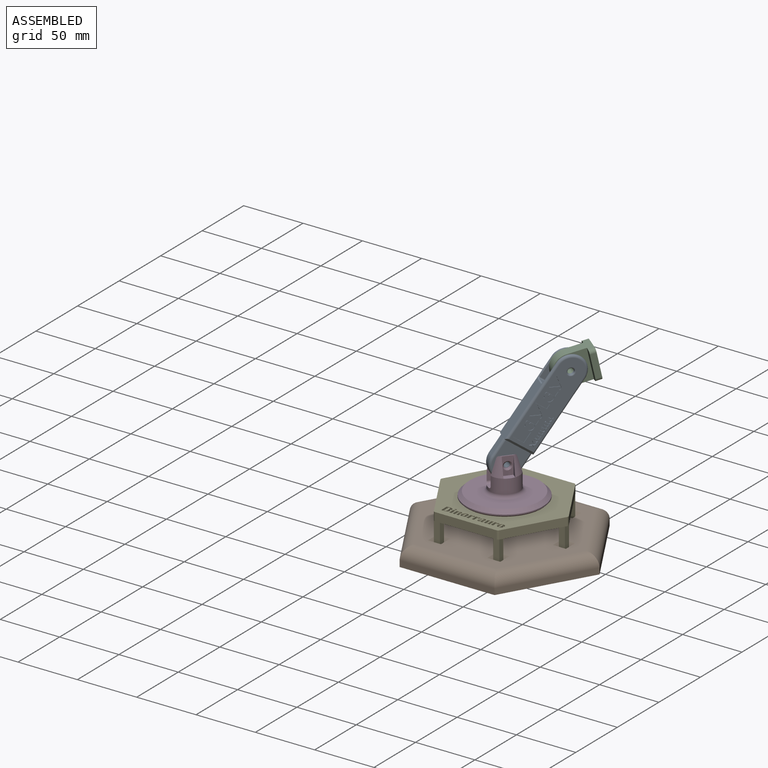
[diagram: assembled view]
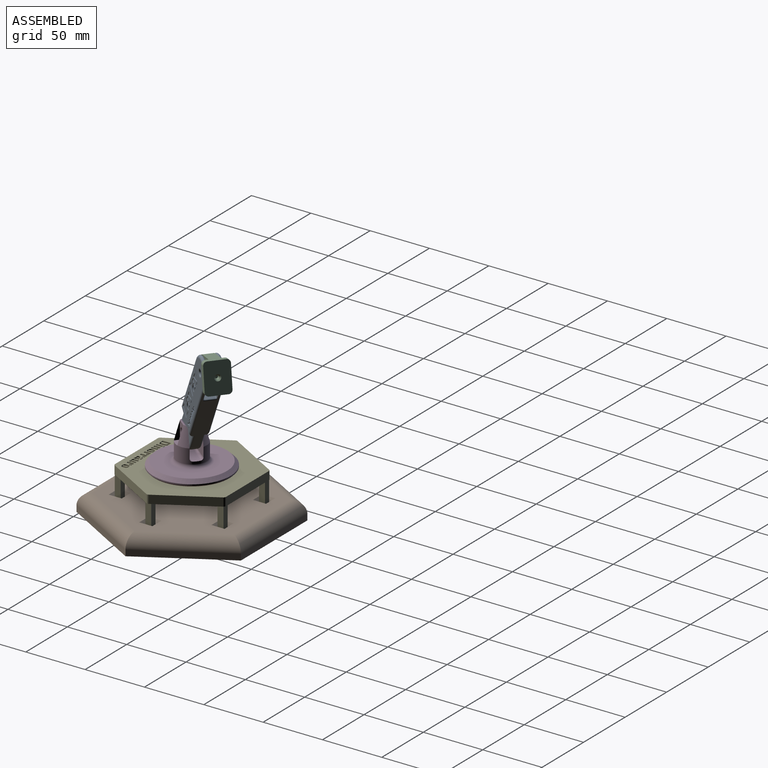
[diagram: assembled view, second angle]
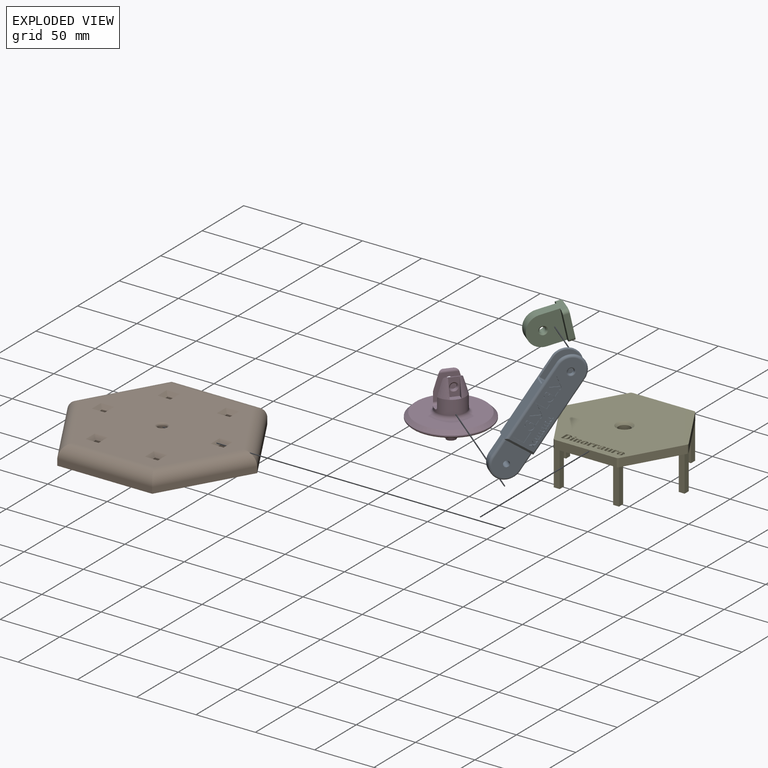
[diagram: exploded view]
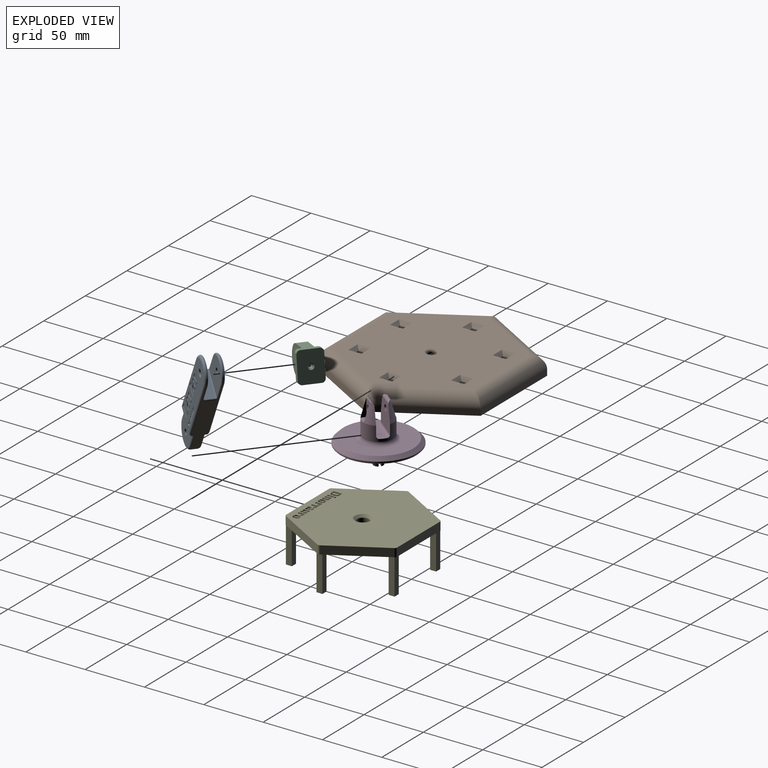
[diagram: exploded view, second angle]
FCSTD DOCUMENT  (FreeCAD 1.0R39319 (Git))
Label: Articulated_Artm
License: All rights reserved
LicenseURL: https://en.wikipedia.org/wiki/All_rights_reserved
objects: Sketcher::SketchObject×35, PartDesign::Fillet×24, PartDesign::Pocket×19, PartDesign::Pad×16, PartDesign::Chamfer×14, PartDesign::Body×9, Part::Part2DObjectPython×5, Part::Extrusion×5, Part::Cut×5, App::Link×5, App::FeaturePython×5, Part::Scale×1, Assembly::JointGroup×1, Assembly::AssemblyObject×1
note: 314 computed .brp shape members not serialized (recipe doc carries the construction recipe); baked Part::Feature solids carry a one-line shape summary decoded from their .brp

FEATURE [Sketcher::SketchObject] Sketch
  ArcFitTolerance = 1e-06
  AttachmentSupport = -> [XY_Plane]
  FullyConstrained = true
  MakeInternals = false
  MapMode = 5
  sketch-geometry (7):
    g0: LineSegment StartX=80 StartY=0 StartZ=0 EndX=40 EndY=69.282 EndZ=0
    g1: LineSegment StartX=40 StartY=69.282 StartZ=0 EndX=-40 EndY=69.282 EndZ=0
    g2: LineSegment StartX=-40 StartY=69.282 StartZ=0 EndX=-80 EndY=1.42e-14 EndZ=0
    g3: LineSegment StartX=-80 StartY=9.8e-15 StartZ=0 EndX=-40 EndY=-69.282 EndZ=0
    g4: LineSegment StartX=-40 StartY=-69.282 StartZ=0 EndX=40 EndY=-69.282 EndZ=0
    g5: LineSegment StartX=40 StartY=-69.282 StartZ=0 EndX=80 EndY=0 EndZ=0
    g6: Circle [constr] CenterX=0 CenterY=0 CenterZ=0 NormalX=0 NormalY=0 NormalZ=1 AngleXU=0 Radius=80
  constraints (16):
    c: Coincident(g0,g1)
    c: Coincident(g1,g2)
    c: Coincident(g2,g3)
    c: Coincident(g3,g4)
    c: Coincident(g4,g5)
    c: Coincident(g5,g0)
    c: Equal(g0, g1-g5) x5
    c: PointOnObject(g0,g6)
    c: PointOnObject(g1,g6)
    c: PointOnObject(g2,g6)
    c: PointOnObject(g3,g6)
    c: PointOnObject(g4,g6)
    c: PointOnObject(g5,g6)
    c: Radius(g6) = 80
    c: Coincident(g6,g-1)
    c: PointOnObject(g5,g-1)
FEATURE [PartDesign::Pad] Pad
  Direction = (0,0,1)
  Length = 15
  Length2 = 10
  Profile = -> Sketch
  ReferenceAxis = -> Sketch [N_Axis]
  Refine = true
  Suppressed = false
  Type = 0
FEATURE [Sketcher::SketchObject] Sketch001
  ArcFitTolerance = 1e-06
  AttachmentSupport = -> [Pad]
  FullyConstrained = true
  MakeInternals = false
  MapMode = 5
  Placement = pos=(0,0,15) rot=(0,0,1;0rad)
  sketch-geometry (38):
    g0: Circle CenterX=0 CenterY=0 CenterZ=0 NormalX=0 NormalY=0 NormalZ=1 AngleXU=0 Radius=3.5
    g1: LineSegment [constr] StartX=50 StartY=0 StartZ=0 EndX=25 EndY=43.3013 EndZ=0
    g2: LineSegment [constr] StartX=25 StartY=43.3013 StartZ=0 EndX=-25 EndY=43.3013 EndZ=0
    g3: LineSegment [constr] StartX=-25 StartY=43.3013 StartZ=0 EndX=-50 EndY=-7.1e-15 EndZ=0
    g4: LineSegment [constr] StartX=-50 StartY=-7.1e-15 StartZ=0 EndX=-25 EndY=-43.3013 EndZ=0
    g5: LineSegment [constr] StartX=-25 StartY=-43.3013 StartZ=0 EndX=25 EndY=-43.3013 EndZ=0
    g6: LineSegment [constr] StartX=25 StartY=-43.3013 StartZ=0 EndX=50 EndY=0 EndZ=0
    g7: Circle [constr] CenterX=0 CenterY=0 CenterZ=0 NormalX=0 NormalY=0 NormalZ=1 AngleXU=0 Radius=50
    g8: LineSegment StartX=-27.5 StartY=40.8013 StartZ=0 EndX=-22.5 EndY=40.8013 EndZ=0
    g9: LineSegment StartX=-22.5 StartY=40.8013 StartZ=0 EndX=-22.5 EndY=45.8013 EndZ=0
    g10: LineSegment StartX=-22.5 StartY=45.8013 StartZ=0 EndX=-27.5 EndY=45.8013 EndZ=0
    g11: LineSegment StartX=-27.5 StartY=45.8013 StartZ=0 EndX=-27.5 EndY=40.8013 EndZ=0
    g12: GeomPoint [constr] X=-25 Y=43.3013 Z=0
    g13: LineSegment StartX=22.5 StartY=40.8013 StartZ=0 EndX=27.5 EndY=40.8013 EndZ=0
    g14: LineSegment StartX=27.5 StartY=40.8013 StartZ=0 EndX=27.5 EndY=45.8013 EndZ=0
    g15: LineSegment StartX=27.5 StartY=45.8013 StartZ=0 EndX=22.5 EndY=45.8013 EndZ=0
    g16: LineSegment StartX=22.5 StartY=45.8013 StartZ=0 EndX=22.5 EndY=40.8013 EndZ=0
    g17: GeomPoint [constr] X=25 Y=43.3013 Z=0
    g18: LineSegment StartX=47.5 StartY=-2.5 StartZ=0 EndX=52.5 EndY=-2.5 EndZ=0
    g19: LineSegment StartX=52.5 StartY=-2.5 StartZ=0 EndX=52.5 EndY=2.5 EndZ=0
    g20: LineSegment StartX=52.5 StartY=2.5 StartZ=0 EndX=47.5 EndY=2.5 EndZ=0
    g21: LineSegment StartX=47.5 StartY=2.5 StartZ=0 EndX=47.5 EndY=-2.5 EndZ=0
    g22: GeomPoint [constr] X=50 Y=0 Z=0
    g23: LineSegment StartX=27.5 StartY=-40.8013 StartZ=0 EndX=22.5 EndY=-40.8013 EndZ=0
    g24: LineSegment StartX=22.5 StartY=-40.8013 StartZ=0 EndX=22.5 EndY=-45.8013 EndZ=0
    g25: LineSegment StartX=22.5 StartY=-45.8013 StartZ=0 EndX=27.5 EndY=-45.8013 EndZ=0
    g26: LineSegment StartX=27.5 StartY=-45.8013 StartZ=0 EndX=27.5 EndY=-40.8013 EndZ=0
    g27: GeomPoint [constr] X=25 Y=-43.3013 Z=0
    g28: LineSegment StartX=-22.5 StartY=-40.8013 StartZ=0 EndX=-27.5 EndY=-40.8013 EndZ=0
    g29: LineSegment StartX=-27.5 StartY=-40.8013 StartZ=0 EndX=-27.5 EndY=-45.8013 EndZ=0
    g30: LineSegment StartX=-27.5 StartY=-45.8013 StartZ=0 EndX=-22.5 EndY=-45.8013 EndZ=0
    g31: LineSegment StartX=-22.5 StartY=-45.8013 StartZ=0 EndX=-22.5 EndY=-40.8013 EndZ=0
    g32: GeomPoint [constr] X=-25 Y=-43.3013 Z=0
    g33: LineSegment StartX=-47.5 StartY=2.5 StartZ=0 EndX=-52.5 EndY=2.5 EndZ=0
    g34: LineSegment StartX=-52.5 StartY=2.5 StartZ=0 EndX=-52.5 EndY=-2.5 EndZ=0
    g35: LineSegment StartX=-52.5 StartY=-2.5 StartZ=0 EndX=-47.5 EndY=-2.5 EndZ=0
    g36: LineSegment StartX=-47.5 StartY=-2.5 StartZ=0 EndX=-47.5 EndY=2.5 EndZ=0
    g37: GeomPoint [constr] X=-50 Y=0 Z=0
  constraints (93):
    c: Diameter(g0) = 7
    c: Coincident(g0,g-1)
    c: Coincident(g1,g2)
    c: Coincident(g2,g3)
    c: Coincident(g3,g4)
    c: Coincident(g4,g5)
    c: Coincident(g5,g6)
    c: Coincident(g6,g1)
    c: Equal(g1, g2-g6) x5
    c: PointOnObject(g1,g7)
    c: PointOnObject(g2,g7)
    c: PointOnObject(g3,g7)
    c: PointOnObject(g4,g7)
    c: PointOnObject(g5,g7)
    c: PointOnObject(g6,g7)
    c: Radius(g7) = 50
    c: Coincident(g7,g0)
    c: PointOnObject(g6,g-1)
    c: Coincident(g8,g9)
    c: Coincident(g9,g10)
    c: Coincident(g10,g11)
    c: Coincident(g11,g8)
    c: Horizontal(g8)
    c: Horizontal(g10)
    c: Vertical(g9)
    c: Vertical(g11)
    c: Symmetric(g10,g8,g12)
    c: Distance(g9,g11) = 5
    c: Distance(g8,g10) = 5
    c: Coincident(g12,g2)
    c: Coincident(g13,g14)
    c: Coincident(g14,g15)
    c: Coincident(g15,g16)
    c: Coincident(g16,g13)
    c: Horizontal(g13)
    c: Horizontal(g15)
    c: Vertical(g14)
    c: Vertical(g16)
    c: Symmetric(g15,g13,g17)
    c: Distance(g14,g16) = 5
    c: Distance(g13,g15) = 5
    c: Coincident(g17,g1)
    c: Coincident(g18,g19)
    c: Coincident(g19,g20)
    c: Coincident(g20,g21)
    c: Coincident(g21,g18)
    c: Horizontal(g18)
    c: Horizontal(g20)
    c: Vertical(g19)
    c: Vertical(g21)
    c: Symmetric(g20,g18,g22)
    c: Distance(g19,g21) = 5
    c: Distance(g18,g20) = 5
    c: Coincident(g22,g1)
    c: Coincident(g23,g24)
    c: Coincident(g24,g25)
    c: Coincident(g25,g26)
    c: Coincident(g26,g23)
    c: Horizontal(g23)
    c: Horizontal(g25)
    c: Vertical(g24)
    c: Vertical(g26)
    c: Symmetric(g25,g23,g27)
    c: Distance(g24,g26) = 5
    c: Distance(g23,g25) = 5
    c: Coincident(g28,g29)
    c: Coincident(g29,g30)
    c: Coincident(g30,g31)
    c: Coincident(g31,g28)
    c: Horizontal(g28)
    c: Horizontal(g30)
    c: Vertical(g29)
    c: Vertical(g31)
    c: Symmetric(g30,g28,g32)
    c: Distance(g29,g31) = 5
    c: Distance(g28,g30) = 5
    c: Coincident(g33,g34)
    c: Coincident(g34,g35)
    c: Coincident(g35,g36)
    c: Coincident(g36,g33)
    c: Horizontal(g33)
    c: Horizontal(g35)
    c: Vertical(g34)
    c: Vertical(g36)
    c: Symmetric(g35,g33,g37)
    c: Distance(g34,g36) = 5
    c: Distance(g33,g35) = 5
    c: DistanceX(g35) = -47.5
    c: DistanceY(g35) = -2.5
    c: DistanceX(g28) = -22.5
    c: DistanceY(g28) = -40.8013
    c: DistanceX(g23) = 22.5
    c: DistanceY(g23) = -40.8013
FEATURE [PartDesign::Pocket] Pocket
  BaseFeature = -> Pad
  Direction = (0,0,-1)
  Length = 15
  Length2 = 5
  Profile = -> Sketch001
  ReferenceAxis = -> Sketch001 [N_Axis]
  Refine = true
  Suppressed = false
  Type = 0
FEATURE [PartDesign::Fillet] Fillet
  Base = -> Pocket [Edge39,Edge41,Edge40,Edge10,Edge4,Edge7]
  BaseFeature = -> Pocket
  Radius = 10
  Refine = true
  SupportTransform = false
  Suppressed = false
  UseAllEdges = false
FEATURE [PartDesign::Chamfer] Chamfer
  Angle = 45
  Base = -> Fillet [Edge50,Edge53,Edge52,Edge51,Edge56,Edge54,Edge57,Edge55,Edge67,Edge69,Edge68,Edge70,Edge73,Edge71,Edge74,Edge72,Edge58,Edge60,Edge59,Edge61,Edge63,Edge65,Edge64,Edge66]
  BaseFeature = -> Fillet
  ChamferType = 0
  FlipDirection = false
  Refine = true
  Size = 3
  Size2 = 1
  SupportTransform = false
  Suppressed = false
  UseAllEdges = false
FEATURE [PartDesign::Fillet] Fillet001
  Base = -> Chamfer [Edge11]
  BaseFeature = -> Chamfer
  Radius = 2
  Refine = true
  SupportTransform = false
  Suppressed = false
  UseAllEdges = false
FEATURE [PartDesign::Body] Body  label="Base for Articulated arm"
  AllowCompound = false
  Group = -> [Sketch,Pad,Sketch001,Pocket,Fillet,Chamfer,Fillet001]
  Origin = -> Origin
  Tip = -> Fillet001
FEATURE [Sketcher::SketchObject] Sketch002
  ArcFitTolerance = 1e-06
  AttachmentSupport = -> [XY_Plane001]
  FullyConstrained = true
  MakeInternals = false
  MapMode = 5
  sketch-geometry (7):
    g0: LineSegment StartX=54 StartY=0 StartZ=0 EndX=27 EndY=46.7654 EndZ=0
    g1: LineSegment StartX=27 StartY=46.7654 StartZ=0 EndX=-27 EndY=46.7654 EndZ=0
    g2: LineSegment StartX=-27 StartY=46.7654 StartZ=0 EndX=-54 EndY=7.1e-15 EndZ=0
    g3: LineSegment StartX=-54 StartY=7.1e-15 StartZ=0 EndX=-27 EndY=-46.7654 EndZ=0
    g4: LineSegment StartX=-27 StartY=-46.7654 StartZ=0 EndX=27 EndY=-46.7654 EndZ=0
    g5: LineSegment StartX=27 StartY=-46.7654 StartZ=0 EndX=54 EndY=0 EndZ=0
    g6: Circle [constr] CenterX=0 CenterY=0 CenterZ=0 NormalX=0 NormalY=0 NormalZ=1 AngleXU=0 Radius=54
  constraints (16):
    c: Coincident(g0,g1)
    c: Coincident(g1,g2)
    c: Coincident(g2,g3)
    c: Coincident(g3,g4)
    c: Coincident(g4,g5)
    c: Coincident(g5,g0)
    c: Equal(g0, g1-g5) x5
    c: PointOnObject(g0,g6)
    c: PointOnObject(g1,g6)
    c: PointOnObject(g2,g6)
    c: PointOnObject(g3,g6)
    c: PointOnObject(g4,g6)
    c: PointOnObject(g5,g6)
    c: Radius(g6) = 54
    c: Coincident(g6,g-1)
    c: PointOnObject(g5,g-1)
FEATURE [PartDesign::Pad] Pad001
  Direction = (0,0,1)
  Length = 7
  Length2 = 10
  Profile = -> Sketch002
  ReferenceAxis = -> Sketch002 [N_Axis]
  Refine = true
  Suppressed = false
  Type = 0
FEATURE [Sketcher::SketchObject] Sketch003
  ArcFitTolerance = 1e-06
  AttachmentSupport = -> [Pad001]
  FullyConstrained = false
  MakeInternals = false
  MapMode = 5
  Placement = pos=(0,0,7) rot=(0,0,1;0rad)
  sketch-geometry (34):
    g0: LineSegment [constr] StartX=50 StartY=0 StartZ=0 EndX=25 EndY=43.3013 EndZ=0
    g1: LineSegment [constr] StartX=25 StartY=43.3013 StartZ=0 EndX=-25 EndY=43.3013 EndZ=0
    g2: LineSegment [constr] StartX=-25 StartY=43.3013 StartZ=0 EndX=-50 EndY=0 EndZ=0
    g3: LineSegment [constr] StartX=-50 StartY=0 StartZ=0 EndX=-25 EndY=-43.3013 EndZ=0
    g4: LineSegment [constr] StartX=-25 StartY=-43.3013 StartZ=0 EndX=25 EndY=-43.3013 EndZ=0
    g5: LineSegment [constr] StartX=25 StartY=-43.3013 StartZ=0 EndX=50 EndY=0 EndZ=0
    g6: Circle [constr] CenterX=0 CenterY=0 CenterZ=0 NormalX=0 NormalY=0 NormalZ=1 AngleXU=0 Radius=50
    g7: LineSegment StartX=-27.5 StartY=40.8013 StartZ=0 EndX=-22.5 EndY=40.8013 EndZ=0
    g8: LineSegment StartX=-22.5 StartY=40.8013 StartZ=0 EndX=-22.5 EndY=45.8013 EndZ=0
    g9: LineSegment StartX=-22.5 StartY=45.8013 StartZ=0 EndX=-27.5 EndY=45.8013 EndZ=0
    g10: LineSegment StartX=-27.5 StartY=45.8013 StartZ=0 EndX=-27.5 EndY=40.8013 EndZ=0
    g11: GeomPoint [constr] X=-25 Y=43.3013 Z=0
    g12: LineSegment StartX=22.5 StartY=40.8013 StartZ=0 EndX=27.5 EndY=40.8013 EndZ=0
    g13: LineSegment StartX=27.5 StartY=40.8013 StartZ=0 EndX=27.5 EndY=45.8013 EndZ=0
    g14: LineSegment StartX=27.5 StartY=45.8013 StartZ=0 EndX=22.5 EndY=45.8013 EndZ=0
    g15: LineSegment StartX=22.5 StartY=45.8013 StartZ=0 EndX=22.5 EndY=40.8013 EndZ=0
    g16: GeomPoint [constr] X=25 Y=43.3013 Z=0
    g17: LineSegment StartX=47.5 StartY=-2.5 StartZ=0 EndX=52.5 EndY=-2.5 EndZ=0
    g18: LineSegment StartX=52.5 StartY=-2.5 StartZ=0 EndX=52.5 EndY=2.5 EndZ=0
    g19: LineSegment StartX=52.5 StartY=2.5 StartZ=0 EndX=47.5 EndY=2.5 EndZ=0
    g20: LineSegment StartX=47.5 StartY=2.5 StartZ=0 EndX=47.5 EndY=-2.5 EndZ=0
    g21: GeomPoint [constr] X=50 Y=0 Z=0
    g22: LineSegment StartX=27.5 StartY=-40.8013 StartZ=0 EndX=22.5 EndY=-40.8013 EndZ=0
    g23: LineSegment StartX=22.5 StartY=-40.8013 StartZ=0 EndX=22.5 EndY=-45.8013 EndZ=0
    g24: LineSegment StartX=22.5 StartY=-45.8013 StartZ=0 EndX=27.5 EndY=-45.8013 EndZ=0
    g25: LineSegment StartX=27.5 StartY=-45.8013 StartZ=0 EndX=27.5 EndY=-40.8013 EndZ=0
    g26: LineSegment StartX=-47.5 StartY=2.5 StartZ=0 EndX=-52.5 EndY=2.5 EndZ=0
    g27: LineSegment StartX=-52.5 StartY=2.5 StartZ=0 EndX=-52.5 EndY=-2.5 EndZ=0
    g28: LineSegment StartX=-52.5 StartY=-2.5 StartZ=0 EndX=-47.5 EndY=-2.5 EndZ=0
    g29: LineSegment StartX=-47.5 StartY=-2.5 StartZ=0 EndX=-47.5 EndY=2.5 EndZ=0
    g30: LineSegment StartX=-22.5 StartY=-40.8013 StartZ=0 EndX=-27.5 EndY=-40.8013 EndZ=0
    g31: LineSegment StartX=-27.5 StartY=-40.8013 StartZ=0 EndX=-27.5 EndY=-45.8013 EndZ=0
    g32: LineSegment StartX=-27.5 StartY=-45.8013 StartZ=0 EndX=-22.5 EndY=-45.8013 EndZ=0
    g33: LineSegment StartX=-22.5 StartY=-45.8013 StartZ=0 EndX=-22.5 EndY=-40.8013 EndZ=0
  constraints (62):
    c: Coincident(g0,g1)
    c: Coincident(g1,g2)
    c: Coincident(g2,g3)
    c: Coincident(g3,g4)
    c: Coincident(g4,g5)
    c: Coincident(g5,g0)
    c: Equal(g0, g1-g5) x5
    c: PointOnObject(g0,g6)
    c: PointOnObject(g1,g6)
    c: PointOnObject(g2,g6)
    c: PointOnObject(g3,g6)
    c: PointOnObject(g4,g6)
    c: PointOnObject(g5,g6)
    c: Radius(g6) = 50
    c: Coincident(g6,g-1)
    c: PointOnObject(g5,g-1)
    c: Coincident(g7,g8)
    c: Coincident(g8,g9)
    c: Coincident(g9,g10)
    c: Coincident(g10,g7)
    c: Horizontal(g7)
    c: Horizontal(g9)
    c: Vertical(g8)
    c: Vertical(g10)
    c: Symmetric(g9,g7,g11)
    c: Distance(g8,g10) = 5
    c: Distance(g7,g9) = 5
    c: Coincident(g11,g1)
    c: Coincident(g12,g13)
    c: Coincident(g13,g14)
    c: Coincident(g14,g15)
    c: Coincident(g15,g12)
    c: Horizontal(g12)
    c: Horizontal(g14)
    c: Vertical(g13)
    c: Vertical(g15)
    c: Symmetric(g14,g12,g16)
    c: Distance(g13,g15) = 5
    c: Distance(g12,g14) = 5
    c: Coincident(g16,g0)
    c: Coincident(g17,g18)
    c: Coincident(g18,g19)
    c: Coincident(g19,g20)
    c: Coincident(g20,g17)
    c: Horizontal(g17)
    c: Horizontal(g19)
    c: Vertical(g18)
    c: Vertical(g20)
    c: Symmetric(g19,g17,g21)
    c: Distance(g18,g20) = 5
    c: Distance(g17,g19) = 5
    c: Coincident(g21,g0)
    c: Horizontal(g24)
    c: Vertical(g23)
    c: Vertical(g25)
    c: Distance(g22,g24) = 5
    c: Horizontal(g26)
    c: Distance(g26,g28) = 5
    c: Horizontal(g32)
    c: Vertical(g31)
    c: Vertical(g33)
    c: Distance(g30,g32) = 5
FEATURE [PartDesign::Pad] Pad002
  BaseFeature = -> Pad001
  Direction = (0,0,1)
  Length = 30
  Length2 = 10
  Profile = -> Sketch003
  ReferenceAxis = -> Sketch003 [N_Axis]
  Refine = true
  Suppressed = false
  Type = 0
FEATURE [PartDesign::Fillet] Fillet002
  Base = -> Pad002 [Edge42,Edge8,Edge2,Edge41,Edge1,Edge5]
  BaseFeature = -> Pad002
  Radius = 2
  Refine = true
  SupportTransform = false
  Suppressed = false
  UseAllEdges = false
FEATURE [Sketcher::SketchObject] Sketch004
  ArcFitTolerance = 1e-06
  AttachmentSupport = -> [Fillet002]
  FullyConstrained = true
  MakeInternals = false
  MapMode = 5
  Placement = pos=(0,0,0) rot=(1,0,0;3.14159rad)
  sketch-geometry (1):
    g0: Circle CenterX=0 CenterY=0 CenterZ=0 NormalX=0 NormalY=0 NormalZ=1 AngleXU=0 Radius=5
  constraints (2):
    c: Diameter(g0) = 10
    c: Coincident(g0,g-1)
FEATURE [PartDesign::Pocket] Pocket001
  BaseFeature = -> Fillet002
  Direction = (0,0,1)
  Length = 8
  Length2 = 5
  Profile = -> Sketch004
  ReferenceAxis = -> Sketch004 [N_Axis]
  Refine = true
  Suppressed = false
  Type = 0
FEATURE [PartDesign::Chamfer] Chamfer001
  Angle = 45
  Base = -> Pocket001 [Edge16]
  BaseFeature = -> Pocket001
  ChamferType = 0
  FlipDirection = false
  Refine = true
  Size = 2
  Size2 = 1
  SupportTransform = false
  Suppressed = false
  UseAllEdges = false
FEATURE [PartDesign::Body] Body001  label="Swivel Base"
  AllowCompound = false
  Group = -> [Sketch002,Pad001,Sketch003,Pad002,Fillet002,Sketch004,Pocket001,Chamfer001]
  Origin = -> Origin001
  Placement = pos=(-4.5e-15,0,37) rot=(0,1,0;3.14159rad)
  Tip = -> Chamfer001
FEATURE [Sketcher::SketchObject] Sketch005
  ArcFitTolerance = 1e-06
  AttachmentSupport = -> [XY_Plane002]
  FullyConstrained = true
  MakeInternals = false
  MapMode = 5
  sketch-geometry (1):
    g0: Circle CenterX=0 CenterY=0 CenterZ=0 NormalX=0 NormalY=0 NormalZ=1 AngleXU=0 Radius=4
  constraints (2):
    c: Diameter(g0) = 8
    c: Coincident(g0,g-1)
FEATURE [PartDesign::Pad] Pad003
  Direction = (0,0,1)
  Length = 10
  Length2 = 10
  Profile = -> Sketch005
  ReferenceAxis = -> Sketch005 [N_Axis]
  Refine = true
  Suppressed = false
  Type = 0
FEATURE [Sketcher::SketchObject] Sketch006
  ArcFitTolerance = 1e-06
  AttachmentSupport = -> [Pad003]
  FullyConstrained = true
  MakeInternals = false
  MapMode = 5
  Placement = pos=(0,0,0) rot=(1,0,0;3.14159rad)
  sketch-geometry (10):
    g0: Circle [constr] CenterX=0 CenterY=0 CenterZ=0 NormalX=0 NormalY=0 NormalZ=1 AngleXU=0 Radius=6
    g1: LineSegment [constr] StartX=4.47214 StartY=-4 StartZ=0 EndX=4.47214 EndY=4 EndZ=0
    g2: LineSegment [constr] StartX=4.47214 StartY=4 StartZ=0 EndX=-4.47214 EndY=4 EndZ=0
    g3: LineSegment [constr] StartX=-4.47214 StartY=4 StartZ=0 EndX=-4.47214 EndY=-4 EndZ=0
    g4: LineSegment [constr] StartX=-4.47214 StartY=-4 StartZ=0 EndX=4.47214 EndY=-4 EndZ=0
    g5: GeomPoint [constr] X=0 Y=0 Z=0
    g6: ArcOfCircle CenterX=0 CenterY=2e-16 CenterZ=0 NormalX=0 NormalY=0 NormalZ=1 AngleXU=0 Radius=6 StartAngle=2.41186 EndAngle=3.87132
    g7: ArcOfCircle CenterX=0 CenterY=2e-16 CenterZ=0 NormalX=0 NormalY=0 NormalZ=1 AngleXU=0 Radius=6 StartAngle=5.55346 EndAngle=7.01291
    g8: LineSegment StartX=-4.47214 StartY=4 StartZ=0 EndX=4.47214 EndY=4 EndZ=0
    g9: LineSegment StartX=-4.47214 StartY=-4 StartZ=0 EndX=4.47214 EndY=-4 EndZ=0
  constraints (24):
    c: Diameter(g0) = 12
    c: Coincident(g0,g-1)
    c: Coincident(g1,g2)
    c: Coincident(g2,g3)
    c: Coincident(g3,g4)
    c: Coincident(g4,g1)
    c: Vertical(g1)
    c: Vertical(g3)
    c: Horizontal(g2)
    c: Horizontal(g4)
    c: Symmetric(g3,g1,g5)
    c: Coincident(g5,g0)
    c: PointOnObject(g2,g0)
    c: DistanceY(g3,g3) = 8
    c: Coincident(g7,g6)
    c: Coincident(g7,g1)
    c: Coincident(g7,g1)
    c: Coincident(g9,g6)
    c: Coincident(g9,g1)
    c: Horizontal(g9)
    c: Coincident(g2,g6)
    c: Coincident(g2,g8)
    c: Coincident(g1,g8)
    c: Radius(g6) = 6
FEATURE [PartDesign::Pad] Pad004
  BaseFeature = -> Pad003
  Direction = (0,0,-1)
  Length = 5
  Length2 = 10
  Profile = -> Sketch006
  ReferenceAxis = -> Sketch006 [N_Axis]
  Refine = true
  Suppressed = false
  Type = 0
FEATURE [PartDesign::Chamfer] Chamfer002
  Angle = 26
  Base = -> Pad004 [Edge19,Edge16]
  BaseFeature = -> Pad004
  ChamferType = 2
  FlipDirection = false
  Refine = true
  Size = 4
  Size2 = 1
  SupportTransform = false
  Suppressed = false
  UseAllEdges = false
FEATURE [Sketcher::SketchObject] Sketch007
  ArcFitTolerance = 1e-06
  AttachmentSupport = -> [Chamfer002]
  FullyConstrained = true
  MakeInternals = false
  MapMode = 5
  Placement = pos=(0,0,-5) rot=(1,0,0;3.14159rad)
  sketch-geometry (5):
    g0: LineSegment StartX=-1 StartY=-4.5 StartZ=0 EndX=1 EndY=-4.5 EndZ=0
    g1: LineSegment StartX=1 StartY=-4.5 StartZ=0 EndX=1 EndY=4.5 EndZ=0
    g2: LineSegment StartX=1 StartY=4.5 StartZ=0 EndX=-1 EndY=4.5 EndZ=0
    g3: LineSegment StartX=-1 StartY=4.5 StartZ=0 EndX=-1 EndY=-4.5 EndZ=0
    g4: GeomPoint [constr] X=0 Y=0 Z=0
  constraints (12):
    c: Coincident(g0,g1)
    c: Coincident(g1,g2)
    c: Coincident(g2,g3)
    c: Coincident(g3,g0)
    c: Horizontal(g0)
    c: Horizontal(g2)
    c: Vertical(g1)
    c: Vertical(g3)
    c: Symmetric(g2,g0,g4)
    c: Distance(g1,g3) = 2
    c: Distance(g0,g2) = 9
    c: Coincident(g4,g-1)
FEATURE [PartDesign::Pocket] Pocket002
  BaseFeature = -> Chamfer002
  Direction = (0,0,1)
  Length = 12
  Length2 = 5
  Profile = -> Sketch007
  ReferenceAxis = -> Sketch007 [N_Axis]
  Refine = true
  Suppressed = false
  Type = 0
FEATURE [Sketcher::SketchObject] Sketch008
  ArcFitTolerance = 1e-06
  AttachmentSupport = -> [Pocket002]
  FullyConstrained = true
  MakeInternals = false
  MapMode = 5
  Placement = pos=(0,0,10) rot=(0,0,1;0rad)
  sketch-geometry (1):
    g0: Circle CenterX=0 CenterY=0 CenterZ=0 NormalX=0 NormalY=0 NormalZ=1 AngleXU=0 Radius=32.5
  constraints (2):
    c: Diameter(g0) = 65
    c: Coincident(g0,g-1)
FEATURE [PartDesign::Pad] Pad005
  BaseFeature = -> Pocket002
  Direction = (0,0,1)
  Length = 5
  Length2 = 10
  Profile = -> Sketch008
  ReferenceAxis = -> Sketch008 [N_Axis]
  Refine = true
  Suppressed = false
  Type = 0
FEATURE [PartDesign::Chamfer] Chamfer003
  Angle = 45
  Base = -> Pad005 [Edge48]
  BaseFeature = -> Pad005
  ChamferType = 0
  FlipDirection = false
  Refine = true
  Size = 3
  Size2 = 1
  SupportTransform = false
  Suppressed = false
  UseAllEdges = false
FEATURE [PartDesign::Chamfer] Chamfer004
  Angle = 45
  Base = -> Chamfer003 [Edge3]
  BaseFeature = -> Chamfer003
  ChamferType = 0
  FlipDirection = false
  Refine = true
  Size = 1
  Size2 = 1
  SupportTransform = false
  Suppressed = false
  UseAllEdges = false
FEATURE [Sketcher::SketchObject] Sketch009
  ArcFitTolerance = 1e-06
  AttachmentSupport = -> [Chamfer004]
  FullyConstrained = true
  MakeInternals = false
  MapMode = 5
  Placement = pos=(0,0,15) rot=(0,0,1;0rad)
  sketch-geometry (1):
    g0: Circle CenterX=0 CenterY=0 CenterZ=0 NormalX=0 NormalY=0 NormalZ=1 AngleXU=0 Radius=12.5
  constraints (2):
    c: Diameter(g0) = 25
    c: Coincident(g0,g-1)
FEATURE [PartDesign::Pad] Pad006
  BaseFeature = -> Chamfer004
  Direction = (0,0,1)
  Length = 30
  Length2 = 10
  Profile = -> Sketch009
  ReferenceAxis = -> Sketch009 [N_Axis]
  Refine = true
  Suppressed = false
  Type = 0
FEATURE [PartDesign::Chamfer] Chamfer005
  Angle = 15
  Base = -> Pad006 [Edge21]
  BaseFeature = -> Pad006
  ChamferType = 2
  FlipDirection = false
  Refine = true
  Size = 15
  Size2 = 1
  SupportTransform = false
  Suppressed = false
  UseAllEdges = false
FEATURE [Sketcher::SketchObject] Sketch010
  ArcFitTolerance = 1e-06
  AttachmentSupport = -> [Chamfer005]
  FullyConstrained = true
  MakeInternals = false
  MapMode = 5
  Placement = pos=(0,0,45) rot=(0,0,1;0rad)
  sketch-geometry (5):
    g0: LineSegment StartX=-5 StartY=-14 StartZ=0 EndX=5 EndY=-14 EndZ=0
    g1: LineSegment StartX=5 StartY=-14 StartZ=0 EndX=5 EndY=14 EndZ=0
    g2: LineSegment StartX=5 StartY=14 StartZ=0 EndX=-5 EndY=14 EndZ=0
    g3: LineSegment StartX=-5 StartY=14 StartZ=0 EndX=-5 EndY=-14 EndZ=0
    g4: GeomPoint [constr] X=0 Y=0 Z=0
  constraints (12):
    c: Coincident(g0,g1)
    c: Coincident(g1,g2)
    c: Coincident(g2,g3)
    c: Coincident(g3,g0)
    c: Horizontal(g0)
    c: Horizontal(g2)
    c: Vertical(g1)
    c: Vertical(g3)
    c: Symmetric(g2,g0,g4)
    c: Distance(g1,g3) = 10
    c: Distance(g0,g2) = 28
    c: Coincident(g4,g-1)
FEATURE [PartDesign::Pocket] Pocket003
  BaseFeature = -> Chamfer005
  Direction = (0,0,-1)
  Length = 25
  Length2 = 5
  Profile = -> Sketch010
  ReferenceAxis = -> Sketch010 [N_Axis]
  Refine = true
  Suppressed = false
  Type = 0
FEATURE [PartDesign::Fillet] Fillet003
  Base = -> Pocket003 [Edge18,Edge17]
  BaseFeature = -> Pocket003
  Radius = 2
  Refine = true
  SupportTransform = false
  Suppressed = false
  UseAllEdges = false
FEATURE [PartDesign::Fillet] Fillet004
  Base = -> Fillet003 [Edge7]
  BaseFeature = -> Fillet003
  Radius = 3
  Refine = true
  SupportTransform = false
  Suppressed = false
  UseAllEdges = false
FEATURE [PartDesign::Fillet] Fillet005
  Base = -> Fillet004 [Edge29,Edge23]
  BaseFeature = -> Fillet004
  Radius = 2
  Refine = true
  SupportTransform = false
  Suppressed = false
  UseAllEdges = false
FEATURE [Sketcher::SketchObject] Sketch011
  ArcFitTolerance = 1e-06
  AttachmentSupport = -> [Fillet005]
  FullyConstrained = true
  MakeInternals = false
  MapMode = 5
  Placement = pos=(0,0,45) rot=(0,0,1;0rad)
  sketch-geometry (10):
    g0: LineSegment StartX=-13.4315 StartY=-4.24781 StartZ=0 EndX=-7.43145 EndY=-4.24781 EndZ=0
    g1: LineSegment StartX=-7.43145 StartY=-4.24781 StartZ=0 EndX=-7.43145 EndY=4.24781 EndZ=0
    g2: LineSegment StartX=-7.43145 StartY=4.24781 StartZ=0 EndX=-13.4315 EndY=4.24781 EndZ=0
    g3: LineSegment StartX=-13.4315 StartY=4.24781 StartZ=0 EndX=-13.4315 EndY=-4.24781 EndZ=0
    g4: GeomPoint [constr] X=-10.4315 Y=0 Z=0
    g5: LineSegment StartX=13.4315 StartY=4.24781 StartZ=0 EndX=7.43145 EndY=4.24781 EndZ=0
    g6: LineSegment StartX=7.43145 StartY=4.24781 StartZ=0 EndX=7.43145 EndY=-4.25219 EndZ=0
    g7: LineSegment StartX=7.43145 StartY=-4.25219 StartZ=0 EndX=13.4315 EndY=-4.25219 EndZ=0
    g8: LineSegment StartX=13.4315 StartY=-4.25219 StartZ=0 EndX=13.4315 EndY=4.24781 EndZ=0
    g9: GeomPoint [constr] X=10.4315 Y=-0.00219 Z=0
  constraints (26):
    c: Coincident(g0,g1)
    c: Coincident(g1,g2)
    c: Coincident(g2,g3)
    c: Coincident(g3,g0)
    c: Horizontal(g0)
    c: Horizontal(g2)
    c: Vertical(g1)
    c: Vertical(g3)
    c: Symmetric(g2,g0,g4)
    c: Distance(g1,g3) = 6
    c: PointOnObject(g4,g-1)
    c: DistanceX(g1) = -7.43145
    c: DistanceY(g1) = 4.24781
    c: Coincident(g5,g6)
    c: Coincident(g6,g7)
    c: Coincident(g7,g8)
    c: Coincident(g8,g5)
    c: Horizontal(g5)
    c: Horizontal(g7)
    c: Vertical(g6)
    c: Vertical(g8)
    c: Symmetric(g7,g5,g9)
    c: Distance(g6,g8) = 6
    c: DistanceX(g5) = 7.43145
    c: DistanceY(g5) = 4.24781
    c: DistanceY(g8,g8) = 8.5
FEATURE [PartDesign::Pocket] Pocket004
  BaseFeature = -> Fillet005
  Direction = (0,0,-1)
  Length = 15
  Length2 = 5
  Profile = -> Sketch011
  ReferenceAxis = -> Sketch011 [N_Axis]
  Refine = true
  Suppressed = false
  Type = 0
FEATURE [Sketcher::SketchObject] Sketch012
  ArcFitTolerance = 1e-06
  AttachmentSupport = -> [Pocket004]
  FullyConstrained = true
  MakeInternals = false
  MapMode = 5
  Placement = pos=(7.43145,0,0) rot=(0.57735,0.57735,0.57735;2.0944rad)
  sketch-geometry (1):
    g0: Circle CenterX=0 CenterY=37.4232 CenterZ=0 NormalX=0 NormalY=0 NormalZ=1 AngleXU=0 Radius=2.5
  constraints (3):
    c: Diameter(g0) = 5
    c: PointOnObject(g0,g-2)
    c: DistanceY(g0) = 37.4232
FEATURE [PartDesign::Pocket] Pocket005
  BaseFeature = -> Pocket004
  Direction = (-1,0,0)
  Length = 23
  Length2 = 5
  Profile = -> Sketch012
  ReferenceAxis = -> Sketch012 [N_Axis]
  Refine = true
  Suppressed = false
  Type = 0
FEATURE [PartDesign::Chamfer] Chamfer006
  Angle = 45
  Base = -> Pocket005 [Edge65,Edge16]
  BaseFeature = -> Pocket005
  ChamferType = 0
  FlipDirection = false
  Refine = true
  Size = 1
  Size2 = 1
  SupportTransform = false
  Suppressed = false
  UseAllEdges = false
FEATURE [PartDesign::Body] Body002  label="Shoulder"
  AllowCompound = false
  Group = -> [Sketch005,Pad003,Sketch006,Pad004,Chamfer002,Sketch007,Pocket002,Sketch008,Pad005,Chamfer003,Chamfer004,Sketch009,Pad006,Chamfer005,Sketch010,Pocket003,Fillet003,Fillet004,Fillet005,Sketch011,Pocket004,Sketch012,Pocket005,Chamfer006]
  Origin = -> Origin002
  Placement = pos=(0,0,27) rot=(0,0,1;0rad)
  Tip = -> Chamfer006
FEATURE [Sketcher::SketchObject] Sketch013
  ArcFitTolerance = 1e-06
  AttachmentSupport = -> [YZ_Plane003]
  FullyConstrained = true
  MakeInternals = false
  MapMode = 5
  Placement = pos=(0,0,0) rot=(0.57735,0.57735,0.57735;2.0944rad)
  sketch-geometry (9):
    g0: Circle [constr] CenterX=0 CenterY=0 CenterZ=0 NormalX=0 NormalY=0 NormalZ=1 AngleXU=0 Radius=12.5
    g1: ArcOfCircle CenterX=0 CenterY=0 CenterZ=0 NormalX=0 NormalY=0 NormalZ=1 AngleXU=0 Radius=12.5 StartAngle=3.14159 EndAngle=6.28319
    g2: LineSegment StartX=-12.5 StartY=1.71569e-07 StartZ=0 EndX=-12.5 EndY=80 EndZ=0
    g3: LineSegment StartX=12.5 StartY=1.7157e-07 StartZ=0 EndX=12.5 EndY=80 EndZ=0
    g4: LineSegment [constr] StartX=-12.5 StartY=80 StartZ=0 EndX=12.5 EndY=80 EndZ=0
    g5: ArcOfCircle CenterX=-5e-16 CenterY=80 CenterZ=0 NormalX=0 NormalY=0 NormalZ=1 AngleXU=0 Radius=12.5 StartAngle=1.33137e-06 EndAngle=3.14159
    g6: Circle CenterX=-5e-16 CenterY=80 CenterZ=0 NormalX=0 NormalY=0 NormalZ=1 AngleXU=0 Radius=1.66421e-05
    g7: Circle CenterX=-5e-16 CenterY=80 CenterZ=0 NormalX=0 NormalY=0 NormalZ=1 AngleXU=0 Radius=2.5
    g8: Circle CenterX=0 CenterY=0 CenterZ=0 NormalX=0 NormalY=0 NormalZ=1 AngleXU=0 Radius=2.5
  constraints (23):
    c: Diameter(g0) = 25
    c: Coincident(g0,g-1)
    c: Coincident(g1,g0)
    c: PointOnObject(g1,g0)
    c: Distance(g2) = 80
    c: Coincident(g2,g1)
    c: Vertical(g2)
    c: Tangent(g2,g0)
    c: Distance(g3) = 80
    c: Vertical(g3)
    c: Coincident(g3,g1)
    c: Coincident(g4,g2)
    c: Coincident(g4,g3)
    c: Horizontal(g4)
    c: Coincident(g2,g5)
    c: Coincident(g3,g5)
    c: Radius(g5) = 12.5
    c: Coincident(g6,g5)
    c: Tangent(g6,g4)
    c: Coincident(g7,g5)
    c: Diameter(g7) = 5
    c: Coincident(g8,g0)
    c: Diameter(g8) = 5
FEATURE [PartDesign::Pad] Pad007
  Direction = (1,0,0)
  Length = 15
  Length2 = 10
  Midplane = true
  Placement = pos=(0,0,0) rot=(1,1,1;2.0944rad)
  Profile = -> Sketch013
  ReferenceAxis = -> Sketch013 [N_Axis]
  Refine = true
  Suppressed = false
  Type = 0
FEATURE [Sketcher::SketchObject] Sketch014
  ArcFitTolerance = 1e-06
  AttachmentSupport = -> [Pad007]
  FullyConstrained = true
  MakeInternals = false
  MapMode = 5
  Placement = pos=(-7.5,0,0) rot=(0.57735,0.57735,-0.57735;4.18879rad)
  sketch-geometry (5):
    g0: Circle [constr] CenterX=0 CenterY=0 CenterZ=0 NormalX=0 NormalY=0 NormalZ=1 AngleXU=0 Radius=12.5
    g1: ArcOfCircle CenterX=0 CenterY=0 CenterZ=0 NormalX=0 NormalY=0 NormalZ=1 AngleXU=0 Radius=12.5 StartAngle=3.61321e-06 EndAngle=3.1416
    g2: LineSegment StartX=-12.5 StartY=-4.94952e-05 StartZ=0 EndX=-12.5 EndY=-15 EndZ=0
    g3: LineSegment StartX=12.5 StartY=4.51651e-05 StartZ=0 EndX=12.5 EndY=-15 EndZ=0
    g4: LineSegment StartX=-12.5 StartY=-15 StartZ=0 EndX=12.5 EndY=-15 EndZ=0
  constraints (14):
    c: Diameter(g0) = 25
    c: Coincident(g0,g-1)
    c: Angle(g1) = 3.14159
    c: Coincident(g1,g0)
    c: PointOnObject(g1,g0)
    c: Distance(g2) = 15
    c: Vertical(g2)
    c: Coincident(g2,g1)
    c: Distance(g3) = 15
    c: Coincident(g3,g1)
    c: Vertical(g3)
    c: Tangent(g3,g0)
    c: Coincident(g2,g4)
    c: Coincident(g3,g4)
FEATURE [PartDesign::Pocket] Pocket006
  BaseFeature = -> Pad007
  Direction = (1,0,0)
  Length = 3
  Length2 = 5
  Placement = pos=(0,0,0) rot=(1,1,1;2.0944rad)
  Profile = -> Sketch014
  ReferenceAxis = -> Sketch014 [N_Axis]
  Refine = true
  Suppressed = false
  Type = 0
FEATURE [Sketcher::SketchObject] Sketch015
  ArcFitTolerance = 1e-06
  AttachmentSupport = -> [Pocket006]
  FullyConstrained = false
  MakeInternals = false
  MapMode = 5
  Placement = pos=(7.5,0,0) rot=(0.57735,0.57735,0.57735;2.0944rad)
  sketch-geometry (5):
    g0: Circle [constr] CenterX=0 CenterY=0 CenterZ=0 NormalX=0 NormalY=0 NormalZ=1 AngleXU=0 Radius=12.5
    g1: ArcOfCircle CenterX=0 CenterY=0 CenterZ=0 NormalX=0 NormalY=0 NormalZ=1 AngleXU=0 Radius=12.6 StartAngle=3.13368 EndAngle=6.28328
    g2: LineSegment StartX=-12.5996 StartY=0.0996788 StartZ=0 EndX=-12.5996 EndY=15.0997 EndZ=0
    g3: LineSegment StartX=12.6 StartY=0.0012254 StartZ=0 EndX=12.5004 EndY=15.0012 EndZ=0
    g4: LineSegment StartX=-12.5996 StartY=15.0997 StartZ=0 EndX=12.5004 EndY=15.0012 EndZ=0
  constraints (11):
    c: Vertical(g2)
    c: Coincident(g1,g2)
    c: Radius(g1) = 12.6
    c: DistanceX(g4,g4) = 25.1
    c: DistanceY(g2,g2) = 15
    c: DistanceY(g3,g3) = 15
    c: DistanceX(g1) = 0
    c: DistanceY(g1) = 0
    c: Coincident(g3,g4)
    c: Coincident(g2,g4)
    c: Coincident(g1,g3)
FEATURE [PartDesign::Pocket] Pocket007
  BaseFeature = -> Pocket006
  Direction = (-1,0,0)
  Length = 3
  Length2 = 5
  Placement = pos=(0,0,0) rot=(1,1,1;2.0944rad)
  Profile = -> Sketch015
  ReferenceAxis = -> Sketch015 [N_Axis]
  Refine = true
  Suppressed = false
  Type = 0
FEATURE [PartDesign::Fillet] Fillet006
  Base = -> Pocket007 [Edge2,Edge4]
  BaseFeature = -> Pocket007
  Placement = pos=(0,0,0) rot=(1,1,1;2.0944rad)
  Radius = 2
  Refine = true
  SupportTransform = false
  Suppressed = false
  UseAllEdges = false
FEATURE [PartDesign::Chamfer] Chamfer007
  Angle = 45
  Base = -> Fillet006 [Edge35,Edge38]
  BaseFeature = -> Fillet006
  ChamferType = 0
  FlipDirection = false
  Placement = pos=(0,0,0) rot=(1,1,1;2.0944rad)
  Refine = true
  Size = 2
  Size2 = 1
  SupportTransform = false
  Suppressed = false
  UseAllEdges = false
FEATURE [PartDesign::Fillet] Fillet007
  Base = -> Chamfer007 [Edge21,Edge31]
  BaseFeature = -> Chamfer007
  Placement = pos=(0,0,0) rot=(1,1,1;2.0944rad)
  Radius = 2
  Refine = true
  SupportTransform = false
  Suppressed = false
  UseAllEdges = false
FEATURE [PartDesign::Fillet] Fillet008
  Base = -> Fillet007 [Edge49,Edge53]
  BaseFeature = -> Fillet007
  Placement = pos=(0,0,0) rot=(1,1,1;2.0944rad)
  Radius = 1
  Refine = true
  SupportTransform = false
  Suppressed = false
  UseAllEdges = false
FEATURE [Sketcher::SketchObject] Sketch016
  ArcFitTolerance = 1e-06
  AttachmentSupport = -> [Fillet008]
  FullyConstrained = true
  MakeInternals = false
  MapMode = 5
  Placement = pos=(-2.7e-15,-12.5,0) rot=(0.57735,0.57735,-0.57735;2.0944rad)
  sketch-geometry (5):
    g0: LineSegment StartX=-92.5 StartY=-4.75 StartZ=0 EndX=-62.5 EndY=-4.75 EndZ=0
    g1: LineSegment StartX=-62.5 StartY=-4.75 StartZ=0 EndX=-62.5 EndY=4.75 EndZ=0
    g2: LineSegment StartX=-62.5 StartY=4.75 StartZ=0 EndX=-92.5 EndY=4.75 EndZ=0
    g3: LineSegment StartX=-92.5 StartY=4.75 StartZ=0 EndX=-92.5 EndY=-4.75 EndZ=0
    g4: GeomPoint [constr] X=-77.5 Y=0 Z=0
  constraints (13):
    c: Coincident(g0,g1)
    c: Coincident(g1,g2)
    c: Coincident(g2,g3)
    c: Coincident(g3,g0)
    c: Horizontal(g0)
    c: Horizontal(g2)
    c: Vertical(g1)
    c: Vertical(g3)
    c: Symmetric(g2,g0,g4)
    c: Distance(g1,g3) = 30
    c: Distance(g0,g2) = 9.5
    c: PointOnObject(g4,g-1)
    c: DistanceX(g4,g-1) = 77.5
FEATURE [PartDesign::Pocket] Pocket008
  BaseFeature = -> Fillet008
  Direction = (0,1,0)
  Length = 27
  Length2 = 5
  Placement = pos=(0,0,0) rot=(1,1,1;2.0944rad)
  Profile = -> Sketch016
  ReferenceAxis = -> Sketch016 [N_Axis]
  Refine = true
  Suppressed = false
  Type = 0
FEATURE [PartDesign::Fillet] Fillet009
  Base = -> Pocket008 [Edge48,Edge55]
  BaseFeature = -> Pocket008
  Placement = pos=(0,0,0) rot=(1,1,1;2.0944rad)
  Radius = 1
  Refine = true
  SupportTransform = false
  Suppressed = false
  UseAllEdges = false
FEATURE [PartDesign::Fillet] Fillet010
  Base = -> Fillet009 [Edge1,Edge8]
  BaseFeature = -> Fillet009
  Placement = pos=(0,0,0) rot=(1,1,1;2.0944rad)
  Radius = 1
  Refine = true
  SupportTransform = false
  Suppressed = false
  UseAllEdges = false
FEATURE [PartDesign::Body] Body003  label="Arm"
  AllowCompound = false
  Group = -> [Sketch013,Pad007,Sketch014,Pocket006,Sketch015,Pocket007,Fillet006,Chamfer007,Fillet007,Fillet008,Sketch016,Pocket008,Fillet009,Fillet010]
  Origin = -> Origin003
  Placement = pos=(0,0,60) rot=(0,0,1;0rad)
  Tip = -> Fillet010
FEATURE [Sketcher::SketchObject] Sketch017
  ArcFitTolerance = 1e-06
  AttachmentSupport = -> [YZ_Plane004]
  FullyConstrained = true
  MakeInternals = false
  MapMode = 5
  Placement = pos=(0,0,0) rot=(0.57735,0.57735,0.57735;2.0944rad)
  sketch-geometry (5):
    g0: Circle [constr] CenterX=0 CenterY=0 CenterZ=0 NormalX=0 NormalY=0 NormalZ=1 AngleXU=0 Radius=12.5
    g1: ArcOfCircle CenterX=0 CenterY=0 CenterZ=0 NormalX=0 NormalY=0 NormalZ=1 AngleXU=0 Radius=12.5 StartAngle=3.14159 EndAngle=6.28319
    g2: LineSegment StartX=-12.5 StartY=1.20884e-08 StartZ=0 EndX=-12.5 EndY=15 EndZ=0
    g3: LineSegment StartX=12.5 StartY=4.31804e-06 StartZ=0 EndX=12.5 EndY=15 EndZ=0
    g4: LineSegment StartX=-12.5 StartY=15 StartZ=0 EndX=12.5 EndY=15 EndZ=0
  constraints (14):
    c: Diameter(g0) = 25
    c: Coincident(g0,g-1)
    c: Angle(g1) = 3.14159
    c: Coincident(g1,g0)
    c: PointOnObject(g1,g0)
    c: Distance(g2) = 15
    c: Coincident(g2,g1)
    c: Vertical(g2)
    c: Tangent(g2,g0)
    c: Distance(g3) = 15
    c: Coincident(g3,g1)
    c: Vertical(g3)
    c: Coincident(g4,g2)
    c: Coincident(g4,g3)
FEATURE [PartDesign::Pad] Pad008
  Direction = (1,0,0)
  Length = 9
  Length2 = 10
  Placement = pos=(0,0,0) rot=(1,1,1;2.0944rad)
  Profile = -> Sketch017
  ReferenceAxis = -> Sketch017 [N_Axis]
  Refine = true
  Suppressed = false
  Type = 0
FEATURE [Sketcher::SketchObject] Sketch018
  ArcFitTolerance = 1e-06
  AttachmentSupport = -> [Pad008]
  FullyConstrained = true
  MakeInternals = false
  MapMode = 5
  Placement = pos=(0,-2.58357e-06,15) rot=(0,0,-1;1.5708rad)
  sketch-geometry (6):
    g0: LineSegment [constr] StartX=0 StartY=0 StartZ=0 EndX=0 EndY=4.5 EndZ=0
    g1: LineSegment StartX=-12.5 StartY=-5.5 StartZ=0 EndX=12.5 EndY=-5.5 EndZ=0
    g2: LineSegment StartX=12.5 StartY=-5.5 StartZ=0 EndX=12.5 EndY=14.5 EndZ=0
    g3: LineSegment StartX=12.5 StartY=14.5 StartZ=0 EndX=-12.5 EndY=14.5 EndZ=0
    g4: LineSegment StartX=-12.5 StartY=14.5 StartZ=0 EndX=-12.5 EndY=-5.5 EndZ=0
    g5: GeomPoint [constr] X=0 Y=4.5 Z=0
  constraints (15):
    c: Distance(g0) = 4.5
    c: Coincident(g0,g-1)
    c: PointOnObject(g0,g-2)
    c: Coincident(g1,g2)
    c: Coincident(g2,g3)
    c: Coincident(g3,g4)
    c: Coincident(g4,g1)
    c: Horizontal(g1)
    c: Horizontal(g3)
    c: Vertical(g2)
    c: Vertical(g4)
    c: Symmetric(g3,g1,g5)
    c: Distance(g2,g4) = 25
    c: Distance(g1,g3) = 20
    c: Coincident(g5,g0)
FEATURE [PartDesign::Pad] Pad009
  BaseFeature = -> Pad008
  Direction = (0,-1.72238e-07,1)
  Length = 5
  Length2 = 10
  Placement = pos=(0,0,0) rot=(1,1,1;2.0944rad)
  Profile = -> Sketch018
  ReferenceAxis = -> Sketch018 [N_Axis]
  Refine = true
  Suppressed = false
  Type = 0
FEATURE [PartDesign::Fillet] Fillet011
  Base = -> Pad009 [Edge14,Edge18,Edge19,Edge13]
  BaseFeature = -> Pad009
  Placement = pos=(0,0,0) rot=(1,1,1;2.0944rad)
  Radius = 3
  Refine = true
  SupportTransform = false
  Suppressed = false
  UseAllEdges = false
FEATURE [Sketcher::SketchObject] Sketch019
  ArcFitTolerance = 1e-06
  AttachmentSupport = -> [Fillet011]
  FullyConstrained = true
  MakeInternals = false
  MapMode = 5
  Placement = pos=(0,0,0) rot=(0.57735,0.57735,-0.57735;4.18879rad)
  sketch-geometry (1):
    g0: Circle CenterX=0 CenterY=0 CenterZ=0 NormalX=0 NormalY=0 NormalZ=1 AngleXU=0 Radius=2.5
  constraints (2):
    c: Diameter(g0) = 5
    c: Coincident(g0,g-1)
FEATURE [PartDesign::Pocket] Pocket009
  BaseFeature = -> Fillet011
  Direction = (1,0,0)
  Length = 13
  Length2 = 5
  Placement = pos=(0,0,0) rot=(1,1,1;2.0944rad)
  Profile = -> Sketch019
  ReferenceAxis = -> Sketch019 [N_Axis]
  Refine = true
  Suppressed = false
  Type = 0
FEATURE [Sketcher::SketchObject] Sketch020
  ArcFitTolerance = 1e-06
  AttachmentSupport = -> [Pocket009]
  FullyConstrained = true
  MakeInternals = false
  MapMode = 5
  Placement = pos=(0,-3.44476e-06,20) rot=(0,0,-1;1.5708rad)
  sketch-geometry (7):
    g0: LineSegment [constr] StartX=0 StartY=0 StartZ=0 EndX=0 EndY=4.5 EndZ=0
    g1: LineSegment [constr] StartX=-12.5 StartY=-5.5 StartZ=0 EndX=12.5 EndY=-5.5 EndZ=0
    g2: LineSegment [constr] StartX=12.5 StartY=-5.5 StartZ=0 EndX=12.5 EndY=14.5 EndZ=0
    g3: LineSegment [constr] StartX=12.5 StartY=14.5 StartZ=0 EndX=-12.5 EndY=14.5 EndZ=0
    g4: LineSegment [constr] StartX=-12.5 StartY=14.5 StartZ=0 EndX=-12.5 EndY=-5.5 EndZ=0
    g5: GeomPoint [constr] X=0 Y=4.5 Z=0
    g6: Circle CenterX=0 CenterY=4.5 CenterZ=0 NormalX=0 NormalY=0 NormalZ=1 AngleXU=0 Radius=1.5
  constraints (17):
    c: Distance(g0) = 4.5
    c: Coincident(g0,g-1)
    c: PointOnObject(g0,g-2)
    c: Coincident(g1,g2)
    c: Coincident(g2,g3)
    c: Coincident(g3,g4)
    c: Coincident(g4,g1)
    c: Horizontal(g1)
    c: Horizontal(g3)
    c: Vertical(g2)
    c: Vertical(g4)
    c: Symmetric(g3,g1,g5)
    c: Distance(g2,g4) = 25
    c: Distance(g1,g3) = 20
    c: Coincident(g5,g0)
    c: Diameter(g6) = 3
    c: Coincident(g6,g0)
FEATURE [PartDesign::Pocket] Pocket010
  BaseFeature = -> Pocket009
  Direction = (0,1.72238e-07,-1)
  Length = 5
  Length2 = 5
  Placement = pos=(0,0,0) rot=(1,1,1;2.0944rad)
  Profile = -> Sketch020
  ReferenceAxis = -> Sketch020 [N_Axis]
  Refine = true
  Suppressed = false
  Type = 0
FEATURE [PartDesign::Chamfer] Chamfer008
  Angle = 45
  Base = -> Pocket010 [Edge23]
  BaseFeature = -> Pocket010
  ChamferType = 0
  FlipDirection = false
  Placement = pos=(0,0,0) rot=(1,1,1;2.0944rad)
  Refine = true
  Size = 1
  Size2 = 1
  SupportTransform = false
  Suppressed = false
  UseAllEdges = false
FEATURE [PartDesign::Chamfer] Chamfer009
  Angle = 45
  Base = -> Chamfer008 [Edge43,Edge45]
  BaseFeature = -> Chamfer008
  ChamferType = 0
  FlipDirection = false
  Placement = pos=(0,0,0) rot=(1,1,1;2.0944rad)
  Refine = true
  Size = 1
  Size2 = 1
  SupportTransform = false
  Suppressed = false
  UseAllEdges = false
FEATURE [PartDesign::Body] Body004  label="Cam_Mount"
  AllowCompound = false
  Group = -> [Sketch017,Pad008,Sketch018,Pad009,Fillet011,Sketch019,Pocket009,Sketch020,Pocket010,Chamfer008,Chamfer009]
  Origin = -> Origin004
  Placement = pos=(-4.5,0,140) rot=(0,0,1;0rad)
  Tip = -> Chamfer009
FEATURE [Part::Part2DObjectPython] ShapeString  # Draft 2D object (typed FeaturePython)
  FontFile = <path>
  Fuse = false
  Justification = 6
  JustificationReference = 0
  KeepLeftMargin = false
  MakeFace = true
  ObliqueAngle = 0
  Placement = pos=(-35.9,-27.61,37) rot=(0,0,1;0rad)
  ScaleToSize = true
  Size = 7
  String = Dinorrauro
  Tracking = 0
FEATURE [Part::Extrusion] Extrude
  Base = -> ShapeString
  Dir = (0,0,1)
  DirMode = 2
  FaceMakerClass = Part::FaceMakerBullseye
  FaceMakerMode = 3
  LengthFwd = 3
  LengthRev = 0
  Placement = pos=(11.5,-14,-1.5) rot=(0,0,1;0rad)
  Solid = false
  Symmetric = false
FEATURE [Part::Cut] Cut  label="Swivel"
  Base = -> Body001
  Placement = pos=(0,0,26.5) rot=(0,0,1;0rad)
  Refine = true
  Tool = -> Extrude
FEATURE [Part::Part2DObjectPython] ShapeString001  # Draft 2D object (typed FeaturePython)
  FontFile = <path>
  Fuse = false
  Justification = 6
  JustificationReference = 0
  KeepLeftMargin = false
  MakeFace = true
  ObliqueAngle = 0
  Placement = pos=(-46.34,-48.34,0) rot=(0,0,1;0rad)
  ScaleToSize = true
  Size = 12
  String = Laylay
  Tracking = 0
FEATURE [Part::Extrusion] Extrude001
  Base = -> ShapeString001
  Dir = (0,0,1)
  DirMode = 2
  FaceMakerClass = Part::FaceMakerBullseye
  FaceMakerMode = 3
  LengthFwd = 2
  LengthRev = 0
  Placement = pos=(-6.5,46,122.5) rot=(0,1,0;4.71239rad)
  Solid = false
  Symmetric = false
FEATURE [Part::Part2DObjectPython] ShapeString002  # Draft 2D object (typed FeaturePython)
  FontFile = <path>
  Fuse = false
  Justification = 6
  JustificationReference = 0
  KeepLeftMargin = false
  MakeFace = true
  ObliqueAngle = 0
  Placement = pos=(-49.22,-49.33,0) rot=(0,0,1;0rad)
  ScaleToSize = true
  Size = 4
  String = Xanthia
  Tracking = 0
FEATURE [Part::Extrusion] Extrude002
  Base = -> ShapeString002
  Dir = (0,0,1)
  DirMode = 2
  FaceMakerClass = Part::FaceMakerBullseye
  FaceMakerMode = 3
  LengthFwd = 2
  LengthRev = 0
  Placement = pos=(-6.5,40.5,129) rot=(0,1,0;4.71239rad)
  Solid = false
  Symmetric = false
FEATURE [Part::Scale] Scale
  Base = -> Extrude001
  Placement = pos=(-8,47.5,137.5) rot=(0,1,0;4.71239rad)
  Uniform = true
  UniformScale = 0.85
  XScale = 1
  YScale = 1
  ZScale = 1
FEATURE [Part::Cut] Cut001
  Base = -> Body003
  Refine = true
  Tool = -> Extrude002
FEATURE [Part::Cut] Cut002  label="Arm001"
  Base = -> Cut001
  Refine = true
  Tool = -> Scale
FEATURE [App::Link] Base_for_Articulated_arm  label="Base for Articulated arm001"
  LinkedObject = -> Body
FEATURE [App::FeaturePython] GroundedJoint  # Assembly grounded joint (typed FeaturePython)
  ObjectToGround = -> Base_for_Articulated_arm
FEATURE [App::Link] Swivel  label="Swivel001"
  LinkPlacement = pos=(3.6e-15,0,1.7e-14) rot=(0,0,1;0rad)
  LinkedObject = -> Cut
  Placement = pos=(3.6e-15,0,1.7e-14) rot=(0,0,1;0rad)
FEATURE [App::FeaturePython] Joint  label="Fixed"  # Assembly joint (typed FeaturePython)
  Activated = true
  AngleMax = 0
  AngleMin = 0
  Detach1 = false
  Detach2 = false
  Distance = 0
  Distance2 = 0
  EnableAngleMax = false
  EnableAngleMin = false
  EnableLengthMax = false
  EnableLengthMin = false
  JointType = 0 (Fixed)
  LengthMax = 0
  LengthMin = 0
  Offset2 = pos=(0,0,0) rot=(0,0,1;3.14159rad)
  Placement1 = pos=(-25,-40.8013,0) rot=(-0.707107,0,0.707107;3.14159rad)
  Placement2 = pos=(-25,-40.8013,-9e-16) rot=(0,-1,0;4.71239rad)
  Reference1 = -> Assembly [Base_for_Articulated_arm.Edge97,Base_for_Articulated_arm.Edge97]
  Reference2 = -> Assembly [Swivel.Edge437,Swivel.Edge437]
FEATURE [App::Link] Shoulder  label="Shoulder001"
  LinkPlacement = pos=(-1.26e-14,-3.3e-15,27.3097) rot=(0,0,1;2.46168rad)
  LinkedObject = -> Body002
  Placement = pos=(-1.26e-14,-3.3e-15,27.3097) rot=(0,0,1;2.46168rad)
FEATURE [App::FeaturePython] Joint001  label="Revolute"  # Assembly joint (typed FeaturePython)
  Activated = true
  AngleMax = 0
  AngleMin = 0
  Detach1 = false
  Detach2 = false
  Distance = 0
  Distance2 = 0
  EnableAngleMax = false
  EnableAngleMin = false
  EnableLengthMax = false
  EnableLengthMin = false
  JointType = 1 (Revolute)
  LengthMax = 0
  LengthMin = 0
  Placement1 = pos=(0,0,5.19034) rot=(0,0,1;0rad)
  Placement2 = pos=(-4e-15,0,32.5) rot=(0,0,1;3.14159rad)
  Reference1 = -> Assembly [Shoulder.Face33,Shoulder.Face33]
  Reference2 = -> Assembly [Swivel.Face138,Swivel.Face138]
FEATURE [App::Link] Arm001  label="Arm002"
  LinkPlacement = pos=(-21.4754,-26.6161,15.4339) rot=(0.105034,0.29697,0.949092;2.49387rad)
  LinkedObject = -> Cut002
  Placement = pos=(-21.4754,-26.6161,15.4339) rot=(0.105034,0.29697,0.949092;2.49387rad)
FEATURE [App::FeaturePython] Joint002  label="Revolute001"  # Assembly joint (typed FeaturePython)
  Activated = true
  AngleMax = 96.0946
  AngleMin = -96.5048
  Detach1 = false
  Detach2 = false
  Distance = 0
  Distance2 = 0
  EnableAngleMax = true
  EnableAngleMin = true
  EnableLengthMax = false
  EnableLengthMin = false
  JointType = 1 (Revolute)
  LengthMax = 0
  LengthMin = 0
  Offset2 = pos=(0,0,5.75) rot=(0,0,1;0rad)
  Placement1 = pos=(5.71573,1e-16,37.4232) rot=(0.57735,0.57735,0.57735;2.0944rad)
  Placement2 = pos=(5.75,4.2e-15,60) rot=(0.57735,0.57735,0.57735;2.0944rad)
  Reference1 = -> Assembly [Shoulder.Face9,Shoulder.Face9]
  Reference2 = -> Assembly [Arm001.Face358,Arm001.Face358]
FEATURE [App::Link] Cam_Mount  label="Cam_Mount001"
  LinkPlacement = pos=(32.2926,32.53,130.465) rot=(0.217676,0.615449,0.757522;2.61804rad)
  LinkedObject = -> Body004
  Placement = pos=(32.2926,32.53,130.465) rot=(0.217676,0.615449,0.757522;2.61804rad)
FEATURE [App::FeaturePython] Joint003  label="Revolute002"  # Assembly joint (typed FeaturePython)
  Activated = true
  AngleMax = 93.9091
  AngleMin = -94.4573
  Detach1 = false
  Detach2 = false
  Distance = 0
  Distance2 = 0
  EnableAngleMax = true
  EnableAngleMin = true
  EnableLengthMax = false
  EnableLengthMin = false
  JointType = 1 (Revolute)
  LengthMax = 0
  LengthMin = 0
  Offset2 = pos=(0,0,5.5) rot=(0,0,1;0rad)
  Placement1 = pos=(4.5,0,0) rot=(-0.57735,-0.57735,0.57735;2.0944rad)
  Placement2 = pos=(-0.125,-3.83e-14,140) rot=(0.57735,0.57735,0.57735;2.0944rad)
  Reference1 = -> Assembly [Cam_Mount.Face7,Cam_Mount.Face7]
  Reference2 = -> Assembly [Arm001.Face364,Arm001.Face364]
FEATURE [Assembly::JointGroup] Joints
  Group = -> [GroundedJoint,Joint,Joint001,Joint002,Joint003]
FEATURE [Assembly::AssemblyObject] Assembly
  Group = -> [Joints,Base_for_Articulated_arm,GroundedJoint,Swivel,Joint,Shoulder,Joint001,Arm001,Joint002,Cam_Mount,Joint003]
  Origin = -> Origin005
  Type = Assembly
FEATURE [Sketcher::SketchObject] Sketch021
  ArcFitTolerance = 1e-06
  AttachmentSupport = -> [YZ_Plane006]
  FullyConstrained = true
  MakeInternals = false
  MapMode = 5
  Placement = pos=(0,0,0) rot=(0.57735,0.57735,0.57735;2.0944rad)
  sketch-geometry (9):
    g0: Circle [constr] CenterX=0 CenterY=0 CenterZ=0 NormalX=0 NormalY=0 NormalZ=1 AngleXU=0 Radius=12.5
    g1: ArcOfCircle CenterX=0 CenterY=0 CenterZ=0 NormalX=0 NormalY=0 NormalZ=1 AngleXU=0 Radius=12.5 StartAngle=3.14159 EndAngle=6.28319
    g2: LineSegment StartX=-12.5 StartY=1.71569e-07 StartZ=0 EndX=-12.5 EndY=80 EndZ=0
    g3: LineSegment StartX=12.5 StartY=1.7157e-07 StartZ=0 EndX=12.5 EndY=80 EndZ=0
    g4: LineSegment [constr] StartX=-12.5 StartY=80 StartZ=0 EndX=12.5 EndY=80 EndZ=0
    g5: ArcOfCircle CenterX=-5e-16 CenterY=80 CenterZ=0 NormalX=0 NormalY=0 NormalZ=1 AngleXU=0 Radius=12.5 StartAngle=1.33137e-06 EndAngle=3.14159
    g6: Circle CenterX=-5e-16 CenterY=80 CenterZ=0 NormalX=0 NormalY=0 NormalZ=1 AngleXU=0 Radius=1.66421e-05
    g7: Circle CenterX=-5e-16 CenterY=80 CenterZ=0 NormalX=0 NormalY=0 NormalZ=1 AngleXU=0 Radius=2.5
    g8: Circle CenterX=0 CenterY=0 CenterZ=0 NormalX=0 NormalY=0 NormalZ=1 AngleXU=0 Radius=2.5
  constraints (23):
    c: Diameter(g0) = 25
    c: Coincident(g0,g-1)
    c: Coincident(g1,g0)
    c: PointOnObject(g1,g0)
    c: Distance(g2) = 80
    c: Coincident(g2,g1)
    c: Vertical(g2)
    c: Tangent(g2,g0)
    c: Distance(g3) = 80
    c: Vertical(g3)
    c: Coincident(g3,g1)
    c: Coincident(g4,g2)
    c: Coincident(g4,g3)
    c: Horizontal(g4)
    c: Coincident(g2,g5)
    c: Coincident(g3,g5)
    c: Radius(g5) = 12.5
    c: Coincident(g6,g5)
    c: Tangent(g6,g4)
    c: Coincident(g7,g5)
    c: Diameter(g7) = 5
    c: Coincident(g8,g0)
    c: Diameter(g8) = 5
FEATURE [PartDesign::Pad] Pad010
  Direction = (1,0,0)
  Length = 15
  Length2 = 10
  Midplane = true
  Placement = pos=(0,0,0) rot=(1,1,1;2.0944rad)
  Profile = -> Sketch021
  ReferenceAxis = -> Sketch021 [N_Axis]
  Refine = true
  Suppressed = false
  Type = 0
FEATURE [Sketcher::SketchObject] Sketch022
  ArcFitTolerance = 1e-06
  AttachmentSupport = -> [Pad010]
  FullyConstrained = true
  MakeInternals = false
  MapMode = 5
  Placement = pos=(-7.5,1.7e-15,-8e-16) rot=(0.57735,0.57735,-0.57735;4.18879rad)
  sketch-geometry (5):
    g0: Circle [constr] CenterX=0 CenterY=0 CenterZ=0 NormalX=0 NormalY=0 NormalZ=1 AngleXU=0 Radius=12.5
    g1: ArcOfCircle CenterX=0 CenterY=0 CenterZ=0 NormalX=0 NormalY=0 NormalZ=1 AngleXU=0 Radius=12.5 StartAngle=3.61321e-06 EndAngle=3.1416
    g2: LineSegment StartX=-12.5 StartY=-4.94952e-05 StartZ=0 EndX=-12.5 EndY=-15 EndZ=0
    g3: LineSegment StartX=12.5 StartY=4.51651e-05 StartZ=0 EndX=12.5 EndY=-15 EndZ=0
    g4: LineSegment StartX=-12.5 StartY=-15 StartZ=0 EndX=12.5 EndY=-15 EndZ=0
  constraints (14):
    c: Diameter(g0) = 25
    c: Coincident(g0,g-1)
    c: Angle(g1) = 3.14159
    c: Coincident(g1,g0)
    c: PointOnObject(g1,g0)
    c: Distance(g2) = 15
    c: Vertical(g2)
    c: Coincident(g2,g1)
    c: Distance(g3) = 15
    c: Coincident(g3,g1)
    c: Vertical(g3)
    c: Tangent(g3,g0)
    c: Coincident(g2,g4)
    c: Coincident(g3,g4)
FEATURE [PartDesign::Pocket] Pocket011
  BaseFeature = -> Pad010
  Direction = (1,0,0)
  Length = 3
  Length2 = 5
  Placement = pos=(0,0,0) rot=(1,1,1;2.0944rad)
  Profile = -> Sketch022
  ReferenceAxis = -> Sketch022 [N_Axis]
  Refine = true
  Suppressed = false
  Type = 0
FEATURE [Sketcher::SketchObject] Sketch023
  ArcFitTolerance = 1e-06
  AttachmentSupport = -> [Pocket011]
  FullyConstrained = false
  MakeInternals = false
  MapMode = 5
  Placement = pos=(7.5,-3.3e-15,1.7e-15) rot=(0.57735,0.57735,0.57735;2.0944rad)
  sketch-geometry (5):
    g0: Circle [constr] CenterX=0 CenterY=0 CenterZ=0 NormalX=0 NormalY=0 NormalZ=1 AngleXU=0 Radius=12.5
    g1: ArcOfCircle CenterX=0 CenterY=0 CenterZ=0 NormalX=0 NormalY=0 NormalZ=1 AngleXU=0 Radius=12.6 StartAngle=3.13368 EndAngle=6.28328
    g2: LineSegment StartX=-12.5996 StartY=0.0996788 StartZ=0 EndX=-12.5996 EndY=15.0997 EndZ=0
    g3: LineSegment StartX=12.6 StartY=0.0012254 StartZ=0 EndX=12.5004 EndY=15.0012 EndZ=0
    g4: LineSegment StartX=-12.5996 StartY=15.0997 StartZ=0 EndX=12.5004 EndY=15.0012 EndZ=0
  constraints (11):
    c: Vertical(g2)
    c: Coincident(g1,g2)
    c: Radius(g1) = 12.6
    c: DistanceX(g4,g4) = 25.1
    c: DistanceY(g2,g2) = 15
    c: DistanceY(g3,g3) = 15
    c: DistanceX(g1) = 0
    c: DistanceY(g1) = 0
    c: Coincident(g3,g4)
    c: Coincident(g2,g4)
    c: Coincident(g1,g3)
FEATURE [PartDesign::Pocket] Pocket012
  BaseFeature = -> Pocket011
  Direction = (-1,0,0)
  Length = 3
  Length2 = 5
  Placement = pos=(0,0,0) rot=(1,1,1;2.0944rad)
  Profile = -> Sketch023
  ReferenceAxis = -> Sketch023 [N_Axis]
  Refine = true
  Suppressed = false
  Type = 0
FEATURE [PartDesign::Fillet] Fillet012
  Base = -> Pocket012 [Edge2,Edge4]
  BaseFeature = -> Pocket012
  Placement = pos=(0,0,0) rot=(1,1,1;2.0944rad)
  Radius = 2
  Refine = true
  SupportTransform = false
  Suppressed = false
  UseAllEdges = false
FEATURE [PartDesign::Chamfer] Chamfer010
  Angle = 45
  Base = -> Fillet012 [Edge35,Edge38]
  BaseFeature = -> Fillet012
  ChamferType = 0
  FlipDirection = false
  Placement = pos=(0,0,0) rot=(1,1,1;2.0944rad)
  Refine = true
  Size = 2
  Size2 = 1
  SupportTransform = false
  Suppressed = false
  UseAllEdges = false
FEATURE [PartDesign::Fillet] Fillet013
  Base = -> Chamfer010 [Edge21,Edge31]
  BaseFeature = -> Chamfer010
  Placement = pos=(0,0,0) rot=(1,1,1;2.0944rad)
  Radius = 2
  Refine = true
  SupportTransform = false
  Suppressed = false
  UseAllEdges = false
FEATURE [PartDesign::Fillet] Fillet014
  Base = -> Fillet013 [Edge49,Edge53]
  BaseFeature = -> Fillet013
  Placement = pos=(0,0,0) rot=(1,1,1;2.0944rad)
  Radius = 1
  Refine = true
  SupportTransform = false
  Suppressed = false
  UseAllEdges = false
FEATURE [Sketcher::SketchObject] Sketch024
  ArcFitTolerance = 1e-06
  AttachmentSupport = -> [Fillet014]
  FullyConstrained = true
  MakeInternals = false
  MapMode = 5
  Placement = pos=(-2.8e-15,-12.5,9.7e-15) rot=(0.57735,0.57735,-0.57735;2.0944rad)
  sketch-geometry (5):
    g0: LineSegment StartX=-92.5 StartY=-4.75 StartZ=0 EndX=-62.5 EndY=-4.75 EndZ=0
    g1: LineSegment StartX=-62.5 StartY=-4.75 StartZ=0 EndX=-62.5 EndY=4.75 EndZ=0
    g2: LineSegment StartX=-62.5 StartY=4.75 StartZ=0 EndX=-92.5 EndY=4.75 EndZ=0
    g3: LineSegment StartX=-92.5 StartY=4.75 StartZ=0 EndX=-92.5 EndY=-4.75 EndZ=0
    g4: GeomPoint [constr] X=-77.5 Y=0 Z=0
  constraints (13):
    c: Coincident(g0,g1)
    c: Coincident(g1,g2)
    c: Coincident(g2,g3)
    c: Coincident(g3,g0)
    c: Horizontal(g0)
    c: Horizontal(g2)
    c: Vertical(g1)
    c: Vertical(g3)
    c: Symmetric(g2,g0,g4)
    c: Distance(g1,g3) = 30
    c: Distance(g0,g2) = 9.5
    c: PointOnObject(g4,g-1)
    c: DistanceX(g4,g-1) = 77.5
FEATURE [PartDesign::Pocket] Pocket013
  BaseFeature = -> Fillet014
  Direction = (0,1,0)
  Length = 27
  Length2 = 5
  Placement = pos=(0,0,0) rot=(1,1,1;2.0944rad)
  Profile = -> Sketch024
  ReferenceAxis = -> Sketch024 [N_Axis]
  Refine = true
  Suppressed = false
  Type = 0
FEATURE [PartDesign::Fillet] Fillet015
  Base = -> Pocket013 [Edge48,Edge55]
  BaseFeature = -> Pocket013
  Placement = pos=(0,0,0) rot=(1,1,1;2.0944rad)
  Radius = 1
  Refine = true
  SupportTransform = false
  Suppressed = false
  UseAllEdges = false
FEATURE [PartDesign::Fillet] Fillet016
  Base = -> Fillet015 [Edge1,Edge8]
  BaseFeature = -> Fillet015
  Placement = pos=(0,0,0) rot=(1,1,1;2.0944rad)
  Radius = 1
  Refine = true
  SupportTransform = false
  Suppressed = false
  UseAllEdges = false
FEATURE [PartDesign::Body] Body005  label="Arm003"
  AllowCompound = false
  Group = -> [Sketch021,Pad010,Sketch022,Pocket011,Sketch023,Pocket012,Fillet012,Chamfer010,Fillet013,Fillet014,Sketch024,Pocket013,Fillet015,Fillet016]
  Origin = -> Origin006
  Placement = pos=(0,0,60) rot=(0,0,1;0rad)
  Tip = -> Fillet016
FEATURE [Sketcher::SketchObject] Sketch025
  ArcFitTolerance = 1e-06
  AttachmentSupport = -> [XY_Plane007]
  FullyConstrained = true
  MakeInternals = false
  MapMode = 5
  sketch-geometry (7):
    g0: LineSegment StartX=54 StartY=0 StartZ=0 EndX=27 EndY=46.7654 EndZ=0
    g1: LineSegment StartX=27 StartY=46.7654 StartZ=0 EndX=-27 EndY=46.7654 EndZ=0
    g2: LineSegment StartX=-27 StartY=46.7654 StartZ=0 EndX=-54 EndY=7.1e-15 EndZ=0
    g3: LineSegment StartX=-54 StartY=7.1e-15 StartZ=0 EndX=-27 EndY=-46.7654 EndZ=0
    g4: LineSegment StartX=-27 StartY=-46.7654 StartZ=0 EndX=27 EndY=-46.7654 EndZ=0
    g5: LineSegment StartX=27 StartY=-46.7654 StartZ=0 EndX=54 EndY=0 EndZ=0
    g6: Circle [constr] CenterX=0 CenterY=0 CenterZ=0 NormalX=0 NormalY=0 NormalZ=1 AngleXU=0 Radius=54
  constraints (16):
    c: Coincident(g0,g1)
    c: Coincident(g1,g2)
    c: Coincident(g2,g3)
    c: Coincident(g3,g4)
    c: Coincident(g4,g5)
    c: Coincident(g5,g0)
    c: Equal(g0, g1-g5) x5
    c: PointOnObject(g0,g6)
    c: PointOnObject(g1,g6)
    c: PointOnObject(g2,g6)
    c: PointOnObject(g3,g6)
    c: PointOnObject(g4,g6)
    c: PointOnObject(g5,g6)
    c: Radius(g6) = 54
    c: Coincident(g6,g-1)
    c: PointOnObject(g5,g-1)
FEATURE [PartDesign::Pad] Pad011
  Direction = (0,0,1)
  Length = 7
  Length2 = 10
  Profile = -> Sketch025
  ReferenceAxis = -> Sketch025 [N_Axis]
  Refine = true
  Suppressed = false
  Type = 0
FEATURE [Sketcher::SketchObject] Sketch026
  ArcFitTolerance = 1e-06
  AttachmentSupport = -> [Pad011]
  FullyConstrained = false
  MakeInternals = false
  MapMode = 5
  Placement = pos=(0,0,7) rot=(0,0,1;0rad)
  sketch-geometry (34):
    g0: LineSegment [constr] StartX=50 StartY=0 StartZ=0 EndX=25 EndY=43.3013 EndZ=0
    g1: LineSegment [constr] StartX=25 StartY=43.3013 StartZ=0 EndX=-25 EndY=43.3013 EndZ=0
    g2: LineSegment [constr] StartX=-25 StartY=43.3013 StartZ=0 EndX=-50 EndY=0 EndZ=0
    g3: LineSegment [constr] StartX=-50 StartY=0 StartZ=0 EndX=-25 EndY=-43.3013 EndZ=0
    g4: LineSegment [constr] StartX=-25 StartY=-43.3013 StartZ=0 EndX=25 EndY=-43.3013 EndZ=0
    g5: LineSegment [constr] StartX=25 StartY=-43.3013 StartZ=0 EndX=50 EndY=0 EndZ=0
    g6: Circle [constr] CenterX=0 CenterY=0 CenterZ=0 NormalX=0 NormalY=0 NormalZ=1 AngleXU=0 Radius=50
    g7: LineSegment StartX=-27.5 StartY=40.8013 StartZ=0 EndX=-22.5 EndY=40.8013 EndZ=0
    g8: LineSegment StartX=-22.5 StartY=40.8013 StartZ=0 EndX=-22.5 EndY=45.8013 EndZ=0
    g9: LineSegment StartX=-22.5 StartY=45.8013 StartZ=0 EndX=-27.5 EndY=45.8013 EndZ=0
    g10: LineSegment StartX=-27.5 StartY=45.8013 StartZ=0 EndX=-27.5 EndY=40.8013 EndZ=0
    g11: GeomPoint [constr] X=-25 Y=43.3013 Z=0
    g12: LineSegment StartX=22.5 StartY=40.8013 StartZ=0 EndX=27.5 EndY=40.8013 EndZ=0
    g13: LineSegment StartX=27.5 StartY=40.8013 StartZ=0 EndX=27.5 EndY=45.8013 EndZ=0
    g14: LineSegment StartX=27.5 StartY=45.8013 StartZ=0 EndX=22.5 EndY=45.8013 EndZ=0
    g15: LineSegment StartX=22.5 StartY=45.8013 StartZ=0 EndX=22.5 EndY=40.8013 EndZ=0
    g16: GeomPoint [constr] X=25 Y=43.3013 Z=0
    g17: LineSegment StartX=47.5 StartY=-2.5 StartZ=0 EndX=52.5 EndY=-2.5 EndZ=0
    g18: LineSegment StartX=52.5 StartY=-2.5 StartZ=0 EndX=52.5 EndY=2.5 EndZ=0
    g19: LineSegment StartX=52.5 StartY=2.5 StartZ=0 EndX=47.5 EndY=2.5 EndZ=0
    g20: LineSegment StartX=47.5 StartY=2.5 StartZ=0 EndX=47.5 EndY=-2.5 EndZ=0
    g21: GeomPoint [constr] X=50 Y=0 Z=0
    g22: LineSegment StartX=27.5 StartY=-40.8013 StartZ=0 EndX=22.5 EndY=-40.8013 EndZ=0
    g23: LineSegment StartX=22.5 StartY=-40.8013 StartZ=0 EndX=22.5 EndY=-45.8013 EndZ=0
    g24: LineSegment StartX=22.5 StartY=-45.8013 StartZ=0 EndX=27.5 EndY=-45.8013 EndZ=0
    g25: LineSegment StartX=27.5 StartY=-45.8013 StartZ=0 EndX=27.5 EndY=-40.8013 EndZ=0
    g26: LineSegment StartX=-47.5 StartY=2.5 StartZ=0 EndX=-52.5 EndY=2.5 EndZ=0
    g27: LineSegment StartX=-52.5 StartY=2.5 StartZ=0 EndX=-52.5 EndY=-2.5 EndZ=0
    g28: LineSegment StartX=-52.5 StartY=-2.5 StartZ=0 EndX=-47.5 EndY=-2.5 EndZ=0
    g29: LineSegment StartX=-47.5 StartY=-2.5 StartZ=0 EndX=-47.5 EndY=2.5 EndZ=0
    g30: LineSegment StartX=-22.5 StartY=-40.8013 StartZ=0 EndX=-27.5 EndY=-40.8013 EndZ=0
    g31: LineSegment StartX=-27.5 StartY=-40.8013 StartZ=0 EndX=-27.5 EndY=-45.8013 EndZ=0
    g32: LineSegment StartX=-27.5 StartY=-45.8013 StartZ=0 EndX=-22.5 EndY=-45.8013 EndZ=0
    g33: LineSegment StartX=-22.5 StartY=-45.8013 StartZ=0 EndX=-22.5 EndY=-40.8013 EndZ=0
  constraints (62):
    c: Coincident(g0,g1)
    c: Coincident(g1,g2)
    c: Coincident(g2,g3)
    c: Coincident(g3,g4)
    c: Coincident(g4,g5)
    c: Coincident(g5,g0)
    c: Equal(g0, g1-g5) x5
    c: PointOnObject(g0,g6)
    c: PointOnObject(g1,g6)
    c: PointOnObject(g2,g6)
    c: PointOnObject(g3,g6)
    c: PointOnObject(g4,g6)
    c: PointOnObject(g5,g6)
    c: Radius(g6) = 50
    c: Coincident(g6,g-1)
    c: PointOnObject(g5,g-1)
    c: Coincident(g7,g8)
    c: Coincident(g8,g9)
    c: Coincident(g9,g10)
    c: Coincident(g10,g7)
    c: Horizontal(g7)
    c: Horizontal(g9)
    c: Vertical(g8)
    c: Vertical(g10)
    c: Symmetric(g9,g7,g11)
    c: Distance(g8,g10) = 5
    c: Distance(g7,g9) = 5
    c: Coincident(g11,g1)
    c: Coincident(g12,g13)
    c: Coincident(g13,g14)
    c: Coincident(g14,g15)
    c: Coincident(g15,g12)
    c: Horizontal(g12)
    c: Horizontal(g14)
    c: Vertical(g13)
    c: Vertical(g15)
    c: Symmetric(g14,g12,g16)
    c: Distance(g13,g15) = 5
    c: Distance(g12,g14) = 5
    c: Coincident(g16,g0)
    c: Coincident(g17,g18)
    c: Coincident(g18,g19)
    c: Coincident(g19,g20)
    c: Coincident(g20,g17)
    c: Horizontal(g17)
    c: Horizontal(g19)
    c: Vertical(g18)
    c: Vertical(g20)
    c: Symmetric(g19,g17,g21)
    c: Distance(g18,g20) = 5
    c: Distance(g17,g19) = 5
    c: Coincident(g21,g0)
    c: Horizontal(g24)
    c: Vertical(g23)
    c: Vertical(g25)
    c: Distance(g22,g24) = 5
    c: Horizontal(g26)
    c: Distance(g26,g28) = 5
    c: Horizontal(g32)
    c: Vertical(g31)
    c: Vertical(g33)
    c: Distance(g30,g32) = 5
FEATURE [PartDesign::Pad] Pad012
  BaseFeature = -> Pad011
  Direction = (0,0,1)
  Length = 30
  Length2 = 10
  Profile = -> Sketch026
  ReferenceAxis = -> Sketch026 [N_Axis]
  Refine = true
  Suppressed = false
  Type = 0
FEATURE [PartDesign::Fillet] Fillet017
  Base = -> Pad012 [Edge42,Edge8,Edge2,Edge41,Edge1,Edge5]
  BaseFeature = -> Pad012
  Radius = 2
  Refine = true
  SupportTransform = false
  Suppressed = false
  UseAllEdges = false
FEATURE [Sketcher::SketchObject] Sketch027
  ArcFitTolerance = 1e-06
  AttachmentSupport = -> [Fillet017]
  FullyConstrained = true
  MakeInternals = false
  MapMode = 5
  Placement = pos=(0,0,0) rot=(1,0,0;3.14159rad)
  sketch-geometry (1):
    g0: Circle CenterX=0 CenterY=0 CenterZ=0 NormalX=0 NormalY=0 NormalZ=1 AngleXU=0 Radius=5
  constraints (2):
    c: Diameter(g0) = 10
    c: Coincident(g0,g-1)
FEATURE [PartDesign::Pocket] Pocket014
  BaseFeature = -> Fillet017
  Direction = (0,0,1)
  Length = 8
  Length2 = 5
  Profile = -> Sketch027
  ReferenceAxis = -> Sketch027 [N_Axis]
  Refine = true
  Suppressed = false
  Type = 0
FEATURE [PartDesign::Chamfer] Chamfer011
  Angle = 45
  Base = -> Pocket014 [Edge16]
  BaseFeature = -> Pocket014
  ChamferType = 0
  FlipDirection = false
  Refine = true
  Size = 2
  Size2 = 1
  SupportTransform = false
  Suppressed = false
  UseAllEdges = false
FEATURE [PartDesign::Body] Body006  label="Swivel Base001"
  AllowCompound = false
  Group = -> [Sketch025,Pad011,Sketch026,Pad012,Fillet017,Sketch027,Pocket014,Chamfer011]
  Origin = -> Origin007
  Placement = pos=(-4.5e-15,0,37) rot=(0,1,0;3.14159rad)
  Tip = -> Chamfer011
FEATURE [Sketcher::SketchObject] Sketch028
  ArcFitTolerance = 1e-06
  AttachmentSupport = -> [YZ_Plane008]
  FullyConstrained = true
  MakeInternals = false
  MapMode = 5
  Placement = pos=(0,0,0) rot=(0.57735,0.57735,0.57735;2.0944rad)
  sketch-geometry (9):
    g0: Circle [constr] CenterX=0 CenterY=0 CenterZ=0 NormalX=0 NormalY=0 NormalZ=1 AngleXU=0 Radius=12.5
    g1: ArcOfCircle CenterX=0 CenterY=0 CenterZ=0 NormalX=0 NormalY=0 NormalZ=1 AngleXU=0 Radius=12.5 StartAngle=3.14159 EndAngle=6.28319
    g2: LineSegment StartX=-12.5 StartY=1.71569e-07 StartZ=0 EndX=-12.5 EndY=80 EndZ=0
    g3: LineSegment StartX=12.5 StartY=1.7157e-07 StartZ=0 EndX=12.5 EndY=80 EndZ=0
    g4: LineSegment [constr] StartX=-12.5 StartY=80 StartZ=0 EndX=12.5 EndY=80 EndZ=0
    g5: ArcOfCircle CenterX=-5e-16 CenterY=80 CenterZ=0 NormalX=0 NormalY=0 NormalZ=1 AngleXU=0 Radius=12.5 StartAngle=1.33137e-06 EndAngle=3.14159
    g6: Circle CenterX=-5e-16 CenterY=80 CenterZ=0 NormalX=0 NormalY=0 NormalZ=1 AngleXU=0 Radius=1.66421e-05
    g7: Circle CenterX=-5e-16 CenterY=80 CenterZ=0 NormalX=0 NormalY=0 NormalZ=1 AngleXU=0 Radius=2.5
    g8: Circle CenterX=0 CenterY=0 CenterZ=0 NormalX=0 NormalY=0 NormalZ=1 AngleXU=0 Radius=2.5
  constraints (23):
    c: Diameter(g0) = 25
    c: Coincident(g0,g-1)
    c: Coincident(g1,g0)
    c: PointOnObject(g1,g0)
    c: Distance(g2) = 80
    c: Coincident(g2,g1)
    c: Vertical(g2)
    c: Tangent(g2,g0)
    c: Distance(g3) = 80
    c: Vertical(g3)
    c: Coincident(g3,g1)
    c: Coincident(g4,g2)
    c: Coincident(g4,g3)
    c: Horizontal(g4)
    c: Coincident(g2,g5)
    c: Coincident(g3,g5)
    c: Radius(g5) = 12.5
    c: Coincident(g6,g5)
    c: Tangent(g6,g4)
    c: Coincident(g7,g5)
    c: Diameter(g7) = 5
    c: Coincident(g8,g0)
    c: Diameter(g8) = 5
FEATURE [PartDesign::Pad] Pad013
  Direction = (1,0,0)
  Length = 15
  Length2 = 10
  Midplane = true
  Placement = pos=(0,0,0) rot=(1,1,1;2.0944rad)
  Profile = -> Sketch028
  ReferenceAxis = -> Sketch028 [N_Axis]
  Refine = true
  Suppressed = false
  Type = 0
FEATURE [Sketcher::SketchObject] Sketch029
  ArcFitTolerance = 1e-06
  AttachmentSupport = -> [Pad013]
  FullyConstrained = true
  MakeInternals = false
  MapMode = 5
  Placement = pos=(-7.5,1.7e-15,-8e-16) rot=(0.57735,0.57735,-0.57735;4.18879rad)
  sketch-geometry (5):
    g0: Circle [constr] CenterX=0 CenterY=0 CenterZ=0 NormalX=0 NormalY=0 NormalZ=1 AngleXU=0 Radius=12.5
    g1: ArcOfCircle CenterX=0 CenterY=0 CenterZ=0 NormalX=0 NormalY=0 NormalZ=1 AngleXU=0 Radius=12.5 StartAngle=3.61321e-06 EndAngle=3.1416
    g2: LineSegment StartX=-12.5 StartY=-4.94952e-05 StartZ=0 EndX=-12.5 EndY=-15 EndZ=0
    g3: LineSegment StartX=12.5 StartY=4.51651e-05 StartZ=0 EndX=12.5 EndY=-15 EndZ=0
    g4: LineSegment StartX=-12.5 StartY=-15 StartZ=0 EndX=12.5 EndY=-15 EndZ=0
  constraints (14):
    c: Diameter(g0) = 25
    c: Coincident(g0,g-1)
    c: Angle(g1) = 3.14159
    c: Coincident(g1,g0)
    c: PointOnObject(g1,g0)
    c: Distance(g2) = 15
    c: Vertical(g2)
    c: Coincident(g2,g1)
    c: Distance(g3) = 15
    c: Coincident(g3,g1)
    c: Vertical(g3)
    c: Tangent(g3,g0)
    c: Coincident(g2,g4)
    c: Coincident(g3,g4)
FEATURE [PartDesign::Pocket] Pocket015
  BaseFeature = -> Pad013
  Direction = (1,0,0)
  Length = 3
  Length2 = 5
  Placement = pos=(0,0,0) rot=(1,1,1;2.0944rad)
  Profile = -> Sketch029
  ReferenceAxis = -> Sketch029 [N_Axis]
  Refine = true
  Suppressed = false
  Type = 0
FEATURE [Sketcher::SketchObject] Sketch030
  ArcFitTolerance = 1e-06
  AttachmentSupport = -> [Pocket015]
  FullyConstrained = false
  MakeInternals = false
  MapMode = 5
  Placement = pos=(7.5,-3.3e-15,1.7e-15) rot=(0.57735,0.57735,0.57735;2.0944rad)
  sketch-geometry (5):
    g0: Circle [constr] CenterX=0 CenterY=0 CenterZ=0 NormalX=0 NormalY=0 NormalZ=1 AngleXU=0 Radius=12.5
    g1: ArcOfCircle CenterX=0 CenterY=0 CenterZ=0 NormalX=0 NormalY=0 NormalZ=1 AngleXU=0 Radius=12.6 StartAngle=3.13368 EndAngle=6.28328
    g2: LineSegment StartX=-12.5996 StartY=0.0996788 StartZ=0 EndX=-12.5996 EndY=15.0997 EndZ=0
    g3: LineSegment StartX=12.6 StartY=0.0012254 StartZ=0 EndX=12.5004 EndY=15.0012 EndZ=0
    g4: LineSegment StartX=-12.5996 StartY=15.0997 StartZ=0 EndX=12.5004 EndY=15.0012 EndZ=0
  constraints (11):
    c: Vertical(g2)
    c: Coincident(g1,g2)
    c: Radius(g1) = 12.6
    c: DistanceX(g4,g4) = 25.1
    c: DistanceY(g2,g2) = 15
    c: DistanceY(g3,g3) = 15
    c: DistanceX(g1) = 0
    c: DistanceY(g1) = 0
    c: Coincident(g3,g4)
    c: Coincident(g2,g4)
    c: Coincident(g1,g3)
FEATURE [PartDesign::Pocket] Pocket016
  BaseFeature = -> Pocket015
  Direction = (-1,0,0)
  Length = 3
  Length2 = 5
  Placement = pos=(0,0,0) rot=(1,1,1;2.0944rad)
  Profile = -> Sketch030
  ReferenceAxis = -> Sketch030 [N_Axis]
  Refine = true
  Suppressed = false
  Type = 0
FEATURE [PartDesign::Fillet] Fillet018
  Base = -> Pocket016 [Edge2,Edge4]
  BaseFeature = -> Pocket016
  Placement = pos=(0,0,0) rot=(1,1,1;2.0944rad)
  Radius = 2
  Refine = true
  SupportTransform = false
  Suppressed = false
  UseAllEdges = false
FEATURE [PartDesign::Chamfer] Chamfer012
  Angle = 45
  Base = -> Fillet018 [Edge35,Edge38]
  BaseFeature = -> Fillet018
  ChamferType = 0
  FlipDirection = false
  Placement = pos=(0,0,0) rot=(1,1,1;2.0944rad)
  Refine = true
  Size = 2
  Size2 = 1
  SupportTransform = false
  Suppressed = false
  UseAllEdges = false
FEATURE [PartDesign::Fillet] Fillet019
  Base = -> Chamfer012 [Edge21,Edge31]
  BaseFeature = -> Chamfer012
  Placement = pos=(0,0,0) rot=(1,1,1;2.0944rad)
  Radius = 2
  Refine = true
  SupportTransform = false
  Suppressed = false
  UseAllEdges = false
FEATURE [PartDesign::Fillet] Fillet020
  Base = -> Fillet019 [Edge49,Edge53]
  BaseFeature = -> Fillet019
  Placement = pos=(0,0,0) rot=(1,1,1;2.0944rad)
  Radius = 1
  Refine = true
  SupportTransform = false
  Suppressed = false
  UseAllEdges = false
FEATURE [Sketcher::SketchObject] Sketch031
  ArcFitTolerance = 1e-06
  AttachmentSupport = -> [Fillet020]
  FullyConstrained = true
  MakeInternals = false
  MapMode = 5
  Placement = pos=(-2.8e-15,-12.5,9.7e-15) rot=(0.57735,0.57735,-0.57735;2.0944rad)
  sketch-geometry (5):
    g0: LineSegment StartX=-92.5 StartY=-4.75 StartZ=0 EndX=-62.5 EndY=-4.75 EndZ=0
    g1: LineSegment StartX=-62.5 StartY=-4.75 StartZ=0 EndX=-62.5 EndY=4.75 EndZ=0
    g2: LineSegment StartX=-62.5 StartY=4.75 StartZ=0 EndX=-92.5 EndY=4.75 EndZ=0
    g3: LineSegment StartX=-92.5 StartY=4.75 StartZ=0 EndX=-92.5 EndY=-4.75 EndZ=0
    g4: GeomPoint [constr] X=-77.5 Y=0 Z=0
  constraints (13):
    c: Coincident(g0,g1)
    c: Coincident(g1,g2)
    c: Coincident(g2,g3)
    c: Coincident(g3,g0)
    c: Horizontal(g0)
    c: Horizontal(g2)
    c: Vertical(g1)
    c: Vertical(g3)
    c: Symmetric(g2,g0,g4)
    c: Distance(g1,g3) = 30
    c: Distance(g0,g2) = 9.5
    c: PointOnObject(g4,g-1)
    c: DistanceX(g4,g-1) = 77.5
FEATURE [PartDesign::Pocket] Pocket017
  BaseFeature = -> Fillet020
  Direction = (0,1,0)
  Length = 27
  Length2 = 5
  Placement = pos=(0,0,0) rot=(1,1,1;2.0944rad)
  Profile = -> Sketch031
  ReferenceAxis = -> Sketch031 [N_Axis]
  Refine = true
  Suppressed = false
  Type = 0
FEATURE [PartDesign::Fillet] Fillet021
  Base = -> Pocket017 [Edge48,Edge55]
  BaseFeature = -> Pocket017
  Placement = pos=(0,0,0) rot=(1,1,1;2.0944rad)
  Radius = 1
  Refine = true
  SupportTransform = false
  Suppressed = false
  UseAllEdges = false
FEATURE [PartDesign::Fillet] Fillet022
  Base = -> Fillet021 [Edge1,Edge8]
  BaseFeature = -> Fillet021
  Placement = pos=(0,0,0) rot=(1,1,1;2.0944rad)
  Radius = 1
  Refine = true
  SupportTransform = false
  Suppressed = false
  UseAllEdges = false
FEATURE [PartDesign::Body] Body007  label="Arm004"
  AllowCompound = false
  Group = -> [Sketch028,Pad013,Sketch029,Pocket015,Sketch030,Pocket016,Fillet018,Chamfer012,Fillet019,Fillet020,Sketch031,Pocket017,Fillet021,Fillet022]
  Origin = -> Origin008
  Placement = pos=(0,0,60) rot=(0,0,1;0rad)
  Tip = -> Fillet022
FEATURE [Part::Part2DObjectPython] ShapeString003  # Draft 2D object (typed FeaturePython)
  FontFile = <path>
  Fuse = false
  Justification = 6
  JustificationReference = 0
  KeepLeftMargin = false
  MakeFace = true
  ObliqueAngle = 0
  Placement = pos=(48.82,48.12,0) rot=(0,0,1;0rad)
  ScaleToSize = true
  Size = 7
  String = acefist93
  Tracking = 0
FEATURE [Part::Extrusion] Extrude003
  Base = -> ShapeString003
  Dir = (0,0,1)
  DirMode = 2
  FaceMakerClass = Part::FaceMakerBullseye
  FaceMakerMode = 3
  LengthFwd = 2
  LengthRev = 0
  Placement = pos=(7,46.5,31) rot=(0.707107,0,0.707107;3.14159rad)
  Solid = false
  Symmetric = false
FEATURE [Part::Part2DObjectPython] ShapeString004  # Draft 2D object (typed FeaturePython)
  FontFile = <path>
  Fuse = false
  Justification = 6
  JustificationReference = 0
  KeepLeftMargin = false
  MakeFace = true
  ObliqueAngle = 0
  Placement = pos=(47.87,48.58,0) rot=(0,0,1;0rad)
  ScaleToSize = true
  Size = 5
  String = justjoTW
  Tracking = 0
FEATURE [Part::Extrusion] Extrude004
  Base = -> ShapeString004
  Dir = (0,0,1)
  DirMode = 2
  FaceMakerClass = Part::FaceMakerBullseye
  FaceMakerMode = 3
  LengthFwd = 2
  LengthRev = 0
  Placement = pos=(7,55.5,41.5) rot=(0.707107,0,0.707107;3.14159rad)
  Solid = false
  Symmetric = false
FEATURE [Part::Cut] Cut003
  Base = -> Body007
  Refine = true
  Tool = -> Extrude003
FEATURE [Part::Cut] Cut004
  Base = -> Cut003
  Refine = true
  Tool = -> Extrude004
FEATURE [Sketcher::SketchObject] Sketch032
  ArcFitTolerance = 1e-06
  AttachmentSupport = -> [XY_Plane009]
  FullyConstrained = true
  MakeInternals = false
  MapMode = 5
  sketch-geometry (7):
    g0: LineSegment StartX=54 StartY=0 StartZ=0 EndX=27 EndY=46.7654 EndZ=0
    g1: LineSegment StartX=27 StartY=46.7654 StartZ=0 EndX=-27 EndY=46.7654 EndZ=0
    g2: LineSegment StartX=-27 StartY=46.7654 StartZ=0 EndX=-54 EndY=7.1e-15 EndZ=0
    g3: LineSegment StartX=-54 StartY=7.1e-15 StartZ=0 EndX=-27 EndY=-46.7654 EndZ=0
    g4: LineSegment StartX=-27 StartY=-46.7654 StartZ=0 EndX=27 EndY=-46.7654 EndZ=0
    g5: LineSegment StartX=27 StartY=-46.7654 StartZ=0 EndX=54 EndY=0 EndZ=0
    g6: Circle [constr] CenterX=0 CenterY=0 CenterZ=0 NormalX=0 NormalY=0 NormalZ=1 AngleXU=0 Radius=54
  constraints (16):
    c: Coincident(g0,g1)
    c: Coincident(g1,g2)
    c: Coincident(g2,g3)
    c: Coincident(g3,g4)
    c: Coincident(g4,g5)
    c: Coincident(g5,g0)
    c: Equal(g0, g1-g5) x5
    c: PointOnObject(g0,g6)
    c: PointOnObject(g1,g6)
    c: PointOnObject(g2,g6)
    c: PointOnObject(g3,g6)
    c: PointOnObject(g4,g6)
    c: PointOnObject(g5,g6)
    c: Radius(g6) = 54
    c: Coincident(g6,g-1)
    c: PointOnObject(g5,g-1)
FEATURE [PartDesign::Pad] Pad014
  Direction = (0,0,1)
  Length = 7
  Length2 = 10
  Profile = -> Sketch032
  ReferenceAxis = -> Sketch032 [N_Axis]
  Refine = true
  Suppressed = false
  Type = 0
FEATURE [Sketcher::SketchObject] Sketch033
  ArcFitTolerance = 1e-06
  AttachmentSupport = -> [Pad014]
  FullyConstrained = false
  MakeInternals = false
  MapMode = 5
  Placement = pos=(0,0,7) rot=(0,0,1;0rad)
  sketch-geometry (34):
    g0: LineSegment [constr] StartX=50 StartY=0 StartZ=0 EndX=25 EndY=43.3013 EndZ=0
    g1: LineSegment [constr] StartX=25 StartY=43.3013 StartZ=0 EndX=-25 EndY=43.3013 EndZ=0
    g2: LineSegment [constr] StartX=-25 StartY=43.3013 StartZ=0 EndX=-50 EndY=0 EndZ=0
    g3: LineSegment [constr] StartX=-50 StartY=0 StartZ=0 EndX=-25 EndY=-43.3013 EndZ=0
    g4: LineSegment [constr] StartX=-25 StartY=-43.3013 StartZ=0 EndX=25 EndY=-43.3013 EndZ=0
    g5: LineSegment [constr] StartX=25 StartY=-43.3013 StartZ=0 EndX=50 EndY=0 EndZ=0
    g6: Circle [constr] CenterX=0 CenterY=0 CenterZ=0 NormalX=0 NormalY=0 NormalZ=1 AngleXU=0 Radius=50
    g7: LineSegment StartX=-27.5 StartY=40.8013 StartZ=0 EndX=-22.5 EndY=40.8013 EndZ=0
    g8: LineSegment StartX=-22.5 StartY=40.8013 StartZ=0 EndX=-22.5 EndY=45.8013 EndZ=0
    g9: LineSegment StartX=-22.5 StartY=45.8013 StartZ=0 EndX=-27.5 EndY=45.8013 EndZ=0
    g10: LineSegment StartX=-27.5 StartY=45.8013 StartZ=0 EndX=-27.5 EndY=40.8013 EndZ=0
    g11: GeomPoint [constr] X=-25 Y=43.3013 Z=0
    g12: LineSegment StartX=22.5 StartY=40.8013 StartZ=0 EndX=27.5 EndY=40.8013 EndZ=0
    g13: LineSegment StartX=27.5 StartY=40.8013 StartZ=0 EndX=27.5 EndY=45.8013 EndZ=0
    g14: LineSegment StartX=27.5 StartY=45.8013 StartZ=0 EndX=22.5 EndY=45.8013 EndZ=0
    g15: LineSegment StartX=22.5 StartY=45.8013 StartZ=0 EndX=22.5 EndY=40.8013 EndZ=0
    g16: GeomPoint [constr] X=25 Y=43.3013 Z=0
    g17: LineSegment StartX=47.5 StartY=-2.5 StartZ=0 EndX=52.5 EndY=-2.5 EndZ=0
    g18: LineSegment StartX=52.5 StartY=-2.5 StartZ=0 EndX=52.5 EndY=2.5 EndZ=0
    g19: LineSegment StartX=52.5 StartY=2.5 StartZ=0 EndX=47.5 EndY=2.5 EndZ=0
    g20: LineSegment StartX=47.5 StartY=2.5 StartZ=0 EndX=47.5 EndY=-2.5 EndZ=0
    g21: GeomPoint [constr] X=50 Y=0 Z=0
    g22: LineSegment StartX=27.5 StartY=-40.8013 StartZ=0 EndX=22.5 EndY=-40.8013 EndZ=0
    g23: LineSegment StartX=22.5 StartY=-40.8013 StartZ=0 EndX=22.5 EndY=-45.8013 EndZ=0
    g24: LineSegment StartX=22.5 StartY=-45.8013 StartZ=0 EndX=27.5 EndY=-45.8013 EndZ=0
    g25: LineSegment StartX=27.5 StartY=-45.8013 StartZ=0 EndX=27.5 EndY=-40.8013 EndZ=0
    g26: LineSegment StartX=-47.5 StartY=2.5 StartZ=0 EndX=-52.5 EndY=2.5 EndZ=0
    g27: LineSegment StartX=-52.5 StartY=2.5 StartZ=0 EndX=-52.5 EndY=-2.5 EndZ=0
    g28: LineSegment StartX=-52.5 StartY=-2.5 StartZ=0 EndX=-47.5 EndY=-2.5 EndZ=0
    g29: LineSegment StartX=-47.5 StartY=-2.5 StartZ=0 EndX=-47.5 EndY=2.5 EndZ=0
    g30: LineSegment StartX=-22.5 StartY=-40.8013 StartZ=0 EndX=-27.5 EndY=-40.8013 EndZ=0
    g31: LineSegment StartX=-27.5 StartY=-40.8013 StartZ=0 EndX=-27.5 EndY=-45.8013 EndZ=0
    g32: LineSegment StartX=-27.5 StartY=-45.8013 StartZ=0 EndX=-22.5 EndY=-45.8013 EndZ=0
    g33: LineSegment StartX=-22.5 StartY=-45.8013 StartZ=0 EndX=-22.5 EndY=-40.8013 EndZ=0
  constraints (62):
    c: Coincident(g0,g1)
    c: Coincident(g1,g2)
    c: Coincident(g2,g3)
    c: Coincident(g3,g4)
    c: Coincident(g4,g5)
    c: Coincident(g5,g0)
    c: Equal(g0, g1-g5) x5
    c: PointOnObject(g0,g6)
    c: PointOnObject(g1,g6)
    c: PointOnObject(g2,g6)
    c: PointOnObject(g3,g6)
    c: PointOnObject(g4,g6)
    c: PointOnObject(g5,g6)
    c: Radius(g6) = 50
    c: Coincident(g6,g-1)
    c: PointOnObject(g5,g-1)
    c: Coincident(g7,g8)
    c: Coincident(g8,g9)
    c: Coincident(g9,g10)
    c: Coincident(g10,g7)
    c: Horizontal(g7)
    c: Horizontal(g9)
    c: Vertical(g8)
    c: Vertical(g10)
    c: Symmetric(g9,g7,g11)
    c: Distance(g8,g10) = 5
    c: Distance(g7,g9) = 5
    c: Coincident(g11,g1)
    c: Coincident(g12,g13)
    c: Coincident(g13,g14)
    c: Coincident(g14,g15)
    c: Coincident(g15,g12)
    c: Horizontal(g12)
    c: Horizontal(g14)
    c: Vertical(g13)
    c: Vertical(g15)
    c: Symmetric(g14,g12,g16)
    c: Distance(g13,g15) = 5
    c: Distance(g12,g14) = 5
    c: Coincident(g16,g0)
    c: Coincident(g17,g18)
    c: Coincident(g18,g19)
    c: Coincident(g19,g20)
    c: Coincident(g20,g17)
    c: Horizontal(g17)
    c: Horizontal(g19)
    c: Vertical(g18)
    c: Vertical(g20)
    c: Symmetric(g19,g17,g21)
    c: Distance(g18,g20) = 5
    c: Distance(g17,g19) = 5
    c: Coincident(g21,g0)
    c: Horizontal(g24)
    c: Vertical(g23)
    c: Vertical(g25)
    c: Distance(g22,g24) = 5
    c: Horizontal(g26)
    c: Distance(g26,g28) = 5
    c: Horizontal(g32)
    c: Vertical(g31)
    c: Vertical(g33)
    c: Distance(g30,g32) = 5
FEATURE [PartDesign::Pad] Pad015
  BaseFeature = -> Pad014
  Direction = (0,0,1)
  Length = 30
  Length2 = 10
  Profile = -> Sketch033
  ReferenceAxis = -> Sketch033 [N_Axis]
  Refine = true
  Suppressed = false
  Type = 0
FEATURE [PartDesign::Fillet] Fillet023
  Base = -> Pad015 [Edge42,Edge8,Edge2,Edge41,Edge1,Edge5]
  BaseFeature = -> Pad015
  Radius = 2
  Refine = true
  SupportTransform = false
  Suppressed = false
  UseAllEdges = false
FEATURE [Sketcher::SketchObject] Sketch034
  ArcFitTolerance = 1e-06
  AttachmentSupport = -> [Fillet023]
  FullyConstrained = true
  MakeInternals = false
  MapMode = 5
  Placement = pos=(0,0,0) rot=(1,0,0;3.14159rad)
  sketch-geometry (1):
    g0: Circle CenterX=0 CenterY=0 CenterZ=0 NormalX=0 NormalY=0 NormalZ=1 AngleXU=0 Radius=5
  constraints (2):
    c: Diameter(g0) = 10
    c: Coincident(g0,g-1)
FEATURE [PartDesign::Pocket] Pocket018
  BaseFeature = -> Fillet023
  Direction = (0,0,1)
  Length = 8
  Length2 = 5
  Profile = -> Sketch034
  ReferenceAxis = -> Sketch034 [N_Axis]
  Refine = true
  Suppressed = false
  Type = 0
FEATURE [PartDesign::Chamfer] Chamfer013
  Angle = 45
  Base = -> Pocket018 [Edge16]
  BaseFeature = -> Pocket018
  ChamferType = 0
  FlipDirection = false
  Refine = true
  Size = 2
  Size2 = 1
  SupportTransform = false
  Suppressed = false
  UseAllEdges = false
FEATURE [PartDesign::Body] Body008  label="Swivel Base002"
  AllowCompound = false
  Group = -> [Sketch032,Pad014,Sketch033,Pad015,Fillet023,Sketch034,Pocket018,Chamfer013]
  Origin = -> Origin009
  Placement = pos=(-4.5e-15,0,37) rot=(0,1,0;3.14159rad)
  Tip = -> Chamfer013
note: 5 file-system paths scrubbed to <path> (originals preserved in the JSON sidecar)
